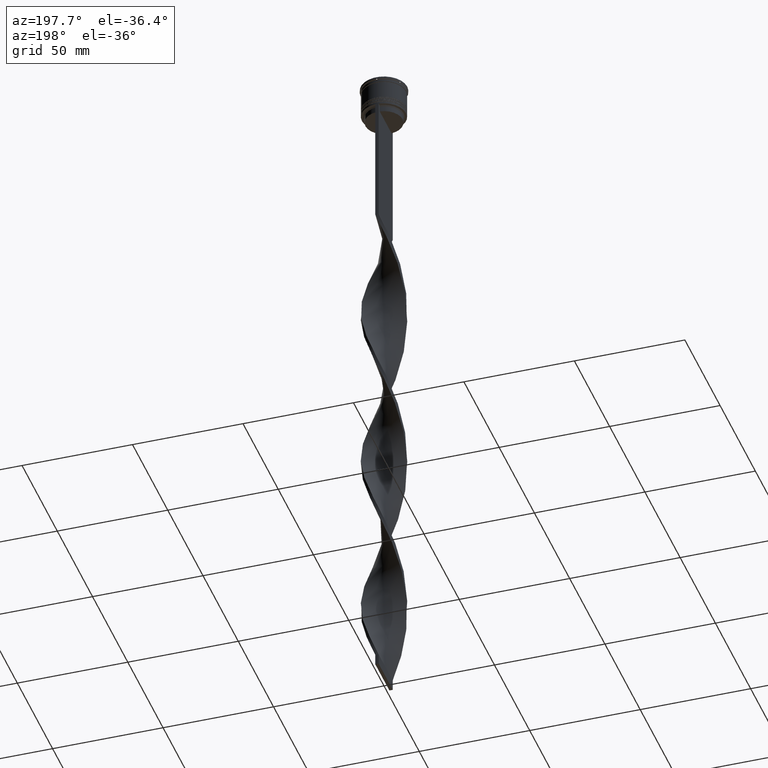
[diagram: clean part render]
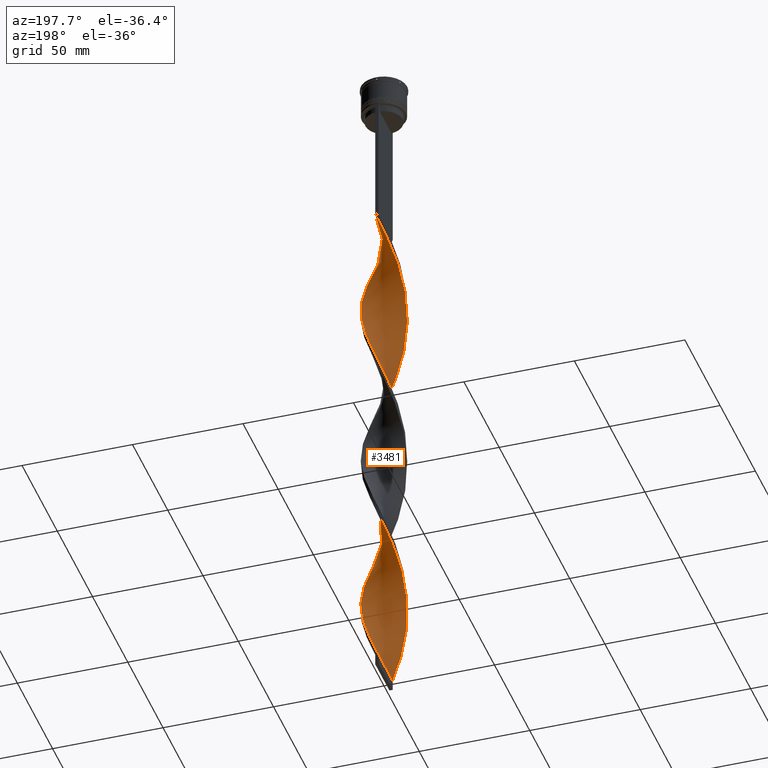
[diagram: same view with one face highlighted and labeled with its STEP entity id]
A machine part, auxiliary view. The second image highlights one B-rep face of the part: STEP entity #3481.
In plain terms, the highlighted face is a freeform B-spline surface patch.
Its self-contained STEP definition (entity closure, byte-faithful):
#19 = VECTOR ( 'NONE', #530, 1000.000000000000000 ) ;
#33 = CARTESIAN_POINT ( 'NONE',  ( -3.871650104254195757, -9.250558116688344157, -218.5333333333333314 ) ) ;
#41 = CARTESIAN_POINT ( 'NONE',  ( -3.871650104254190428, 9.250558116688338828, -242.1333333333333258 ) ) ;
#44 = CARTESIAN_POINT ( 'NONE',  ( -8.531008882968830420, -5.271089777143518340, -285.3999999999999773 ) ) ;
#57 = CARTESIAN_POINT ( 'NONE',  ( -0.03701706824618429537, 10.05902628011846112, -232.3000000000000114 ) ) ;
#68 = CARTESIAN_POINT ( 'NONE',  ( -8.979463439879777908, 4.533719918490541012, -102.5000000000000142 ) ) ;
#76 = CARTESIAN_POINT ( 'NONE',  ( -1.537017068246185891, -9.940973719881535331, -149.7000000000000455 ) ) ;
#81 = CARTESIAN_POINT ( 'NONE',  ( 3.871650104254194869, 9.250558116688344157, -297.2000000000000455 ) ) ;
#96 = CARTESIAN_POINT ( 'NONE',  ( 5.942494737169154106, 8.116165120681840150, -291.3000000000000682 ) ) ;
#103 = CARTESIAN_POINT ( 'NONE',  ( 5.882599862582947203, 8.159681294278261277, -216.5666666666666629 ) ) ;
#113 = CARTESIAN_POINT ( 'NONE',  ( -8.531008882968830420, -5.271089777143518340, -128.0666666666666629 ) ) ;
#124 = CARTESIAN_POINT ( 'NONE',  ( 0.7500000000000001110, 9.999999999999998224, -230.3333333333333428 ) ) ;
#143 = CARTESIAN_POINT ( 'NONE',  ( 9.742327908732750785, -2.376877556528111057, -104.4666666666666828 ) ) ;
#154 = CARTESIAN_POINT ( 'NONE',  ( 2.376877556528111501, 9.742327908732750785, -301.1333333333333258 ) ) ;
#164 = CARTESIAN_POINT ( 'NONE',  ( -0.7500000000000013323, -9.999999999999998224, -309.0000000000000000 ) ) ;
#165 = CARTESIAN_POINT ( 'NONE',  ( 8.531008882968833973, -5.271089777143523669, -96.60000000000000853 ) ) ;
#173 = CARTESIAN_POINT ( 'NONE',  ( 6.540737725975562356, -7.601397897755385991, -171.3333333333333428 ) ) ;
#183 = CARTESIAN_POINT ( 'NONE',  ( 3.143615391390495173, 9.555263588120860518, -141.8333333333333144 ) ) ;
#185 = CARTESIAN_POINT ( 'NONE',  ( 6.484615268705944402, -7.649331004530123934, -88.73333333333334849 ) ) ;
#191 = CARTESIAN_POINT ( 'NONE',  ( 8.116165120681836598, 5.942494737169151442, -208.7000000000000171 ) ) ;
#199 = CARTESIAN_POINT ( 'NONE',  ( -9.578141394460869762, 3.073204743451140697, -263.7666666666667652 ) ) ;
#200 = CARTESIAN_POINT ( 'NONE',  ( 8.945852645255826019, -4.599684817117896785, -98.56666666666669130 ) ) ;
#208 = CARTESIAN_POINT ( 'NONE',  ( 9.278802417170323835, -3.803462330970840632, -183.1333333333333258 ) ) ;
#224 = CARTESIAN_POINT ( 'NONE',  ( -7.601397897755385102, -6.540737725975563244, -289.3333333333333144 ) ) ;
#233 = CARTESIAN_POINT ( 'NONE',  ( 9.555263588120851637, 3.143615391390493397, -200.8333333333333428 ) ) ;
#242 = CARTESIAN_POINT ( 'NONE',  ( -10.00000000000000533, -0.7499999999999983347, -191.0000000000000000 ) ) ;
#248 = CARTESIAN_POINT ( 'NONE',  ( -10.05902628011846112, -0.03701706824618363617, -114.3000000000000398 ) ) ;
#252 = CARTESIAN_POINT ( 'NONE',  ( 6.484615268705942626, 7.649331004530116829, -214.5999999999999943 ) ) ;
#263 = CARTESIAN_POINT ( 'NONE',  ( -5.942494737169157659, -8.116165120681838374, -212.6333333333333826 ) ) ;
#268 = CARTESIAN_POINT ( 'NONE',  ( -9.250558116688338828, -3.871650104254190428, -124.1333333333333400 ) ) ;
#285 = CARTESIAN_POINT ( 'NONE',  ( 9.929392229344639276, -1.610139721665728274, -263.7666666666667652 ) ) ;
#308 = CARTESIAN_POINT ( 'NONE',  ( -8.159681294278266606, -5.882599862582948091, -204.7666666666666799 ) ) ;
#333 = CARTESIAN_POINT ( 'NONE',  ( -9.578141394460880420, -3.073204743451134924, -196.9000000000000057 ) ) ;
#353 = CARTESIAN_POINT ( 'NONE',  ( 5.942494737169147889, -8.116165120681840150, -169.3666666666667027 ) ) ;
#358 = CARTESIAN_POINT ( 'NONE',  ( -7.086630674828936272, -7.138980714781978598, -291.3000000000000682 ) ) ;
#361 = VERTEX_POINT ( 'NONE', #3092 ) ;
#372 = CARTESIAN_POINT ( 'NONE',  ( 4.599684817117890567, -8.945852645255820690, -165.4333333333333655 ) ) ;
#381 = CARTESIAN_POINT ( 'NONE',  ( 5.208159890536745884, -8.569572367079022257, -242.1333333333333258 ) ) ;
#391 = CARTESIAN_POINT ( 'NONE',  ( -8.159681294278259500, 5.882599862582949868, -255.9000000000000909 ) ) ;
#401 = CARTESIAN_POINT ( 'NONE',  ( -9.759557557171204323, 2.305110905848662739, -108.3999999999999915 ) ) ;
#409 = CARTESIAN_POINT ( 'NONE',  ( 9.742327908732745456, 2.376877556528106172, -198.8666666666666742 ) ) ;
#416 = CARTESIAN_POINT ( 'NONE',  ( -7.649331004530125711, -6.484615268705942626, -206.7333333333333201 ) ) ;
#439 = CARTESIAN_POINT ( 'NONE',  ( -7.086630674828937160, -7.138980714781979486, -133.9666666666666686 ) ) ;
#447 = CARTESIAN_POINT ( 'NONE',  ( 9.278802417170330941, 3.803462330970840632, -277.5333333333333030 ) ) ;
#457 = CARTESIAN_POINT ( 'NONE',  ( -9.929392229344635723, -1.610139721665725387, -275.5666666666666060 ) ) ;
#464 = CARTESIAN_POINT ( 'NONE',  ( 8.979463439879786790, 4.533719918490541900, -279.4999999999999432 ) ) ;
#472 = CARTESIAN_POINT ( 'NONE',  ( 7.138980714781985704, 7.086630674828939824, -130.0333333333333314 ) ) ;
#473 = CARTESIAN_POINT ( 'NONE',  ( 9.278802417170330941, 3.803462330970840632, -120.2000000000000028 ) ) ;
#475 = CARTESIAN_POINT ( 'NONE',  ( 3.143615391390495173, 9.555263588120860518, -299.1666666666666856 ) ) ;
#485 = CARTESIAN_POINT ( 'NONE',  ( -8.159681294278255947, 5.882599862582948980, -98.56666666666669130 ) ) ;
#497 = CARTESIAN_POINT ( 'NONE',  ( 4.599684817117896785, 8.945852645255826019, -137.9000000000000625 ) ) ;
#500 = CARTESIAN_POINT ( 'NONE',  ( 9.940973719881544213, 1.537017068246184337, -271.6333333333332689 ) ) ;
#504 = CARTESIAN_POINT ( 'NONE',  ( 8.979463439879776132, -4.533719918490545453, -181.1666666666666856 ) ) ;
#515 = CARTESIAN_POINT ( 'NONE',  ( -4.533719918490541012, -8.979463439879779685, -299.1666666666666856 ) ) ;
#523 = CARTESIAN_POINT ( 'NONE',  ( -6.540737725975564132, 7.601397897755385102, -250.0000000000000000 ) ) ;
#530 = DIRECTION ( 'NONE',  ( 0.000000000000000000, 1.000000000000000000, 0.000000000000000000 ) ) ;
#533 = CARTESIAN_POINT ( 'NONE',  ( 10.00000000000000533, 0.7499999999999994449, -112.3333333333333428 ) ) ;
#535 = CARTESIAN_POINT ( 'NONE',  ( 9.929392229344641052, -1.610139721665728274, -106.4333333333333513 ) ) ;
#543 = CARTESIAN_POINT ( 'NONE',  ( 0.8235783949559536410, -9.994209254731549308, -155.6000000000000227 ) ) ;
#558 = CARTESIAN_POINT ( 'NONE',  ( -9.929392229344641052, 1.610139721665725387, -185.0999999999999659 ) ) ;
#560 = CARTESIAN_POINT ( 'NONE',  ( 1.610139721665729162, 9.929392229344641052, -145.7666666666666515 ) ) ;
#564 = CARTESIAN_POINT ( 'NONE',  ( -8.569572367079015152, 5.208159890536744108, -100.5333333333333314 ) ) ;
#571 = CARTESIAN_POINT ( 'NONE',  ( 9.250558116688338828, 3.871650104254189539, -202.8000000000000114 ) ) ;
#581 = CARTESIAN_POINT ( 'NONE',  ( -4.599684817117894120, -8.945852645255826019, -216.5666666666666629 ) ) ;
#582 = CARTESIAN_POINT ( 'NONE',  ( -1.537017068246183671, 9.940973719881544213, -153.6333333333333826 ) ) ;
#587 = CARTESIAN_POINT ( 'NONE',  ( -7.649331004530118605, 6.484615268705940849, -96.60000000000000853 ) ) ;
#603 = CARTESIAN_POINT ( 'NONE',  ( -7.601397897755389543, 6.540737725975570349, -171.3333333333333428 ) ) ;
#606 = CARTESIAN_POINT ( 'NONE',  ( -9.940973719881535331, 1.537017068246185003, -110.3666666666666600 ) ) ;
#626 = CARTESIAN_POINT ( 'NONE',  ( -9.940973719881544213, -1.537017068246187446, -192.9666666666666970 ) ) ;
#663 = CARTESIAN_POINT ( 'NONE',  ( -9.929392229344635723, -1.610139721665724943, -275.5666666666666060 ) ) ;
#675 = CARTESIAN_POINT ( 'NONE',  ( 9.250558116688338828, 3.871650104254189539, -202.8000000000000114 ) ) ;
#678 = CARTESIAN_POINT ( 'NONE',  ( -1.537017068246183671, 9.940973719881544213, -153.6333333333333826 ) ) ;
#688 = CARTESIAN_POINT ( 'NONE',  ( -8.945852645255827795, 4.599684817117893232, -177.2333333333333485 ) ) ;
#689 = CARTESIAN_POINT ( 'NONE',  ( -0.7500000000000005551, -3.333333333333330373, -309.0000000000000000 ) ) ;
#698 = CARTESIAN_POINT ( 'NONE',  ( -7.601397897755385102, -6.540737725975563244, -132.0000000000000000 ) ) ;
#711 = CARTESIAN_POINT ( 'NONE',  ( -1.610139721665725832, -9.929392229344641052, -224.4333333333333655 ) ) ;
#716 = CARTESIAN_POINT ( 'NONE',  ( -7.649331004530118605, 6.484615268705940849, -253.9333333333333371 ) ) ;
#726 = CARTESIAN_POINT ( 'NONE',  ( -9.999999999999998224, 0.7500000000000008882, -112.3333333333333428 ) ) ;
#734 = CARTESIAN_POINT ( 'NONE',  ( 9.999999999999998224, -0.7500000000000019984, -191.0000000000000000 ) ) ;
#742 = CARTESIAN_POINT ( 'NONE',  ( -7.649331004530118605, 6.484615268705940849, -96.60000000000000853 ) ) ;
#753 = CARTESIAN_POINT ( 'NONE',  ( 7.086630674828940712, 7.138980714781974157, -212.6333333333333826 ) ) ;
#758 = CARTESIAN_POINT ( 'NONE',  ( -0.7499999999999988898, 10.00000000000000533, -151.6666666666666856 ) ) ;
#770 = CARTESIAN_POINT ( 'NONE',  ( 8.569572367079022257, 5.208159890536745884, -281.4666666666666401 ) ) ;
#778 = CARTESIAN_POINT ( 'NONE',  ( -9.742327908732745456, -2.376877556528107949, -277.5333333333333030 ) ) ;
#781 = CARTESIAN_POINT ( 'NONE',  ( 4.599684817117896785, 8.945852645255826019, -137.9000000000000625 ) ) ;
#791 = CARTESIAN_POINT ( 'NONE',  ( -9.759557557171209652, -2.305110905848660963, -194.9333333333333371 ) ) ;
#797 = CARTESIAN_POINT ( 'NONE',  ( -5.882599862582949868, -8.159681294278259500, -295.2333333333332916 ) ) ;
#817 = CARTESIAN_POINT ( 'NONE',  ( 5.942494737169154106, 8.116165120681840150, -133.9666666666666686 ) ) ;
#818 = CARTESIAN_POINT ( 'NONE',  ( 5.942494737169154106, 8.116165120681841927, -133.9666666666666686 ) ) ;
#827 = CARTESIAN_POINT ( 'NONE',  ( -0.8235783949559584149, -9.994209254731554637, -226.3999999999999773 ) ) ;
#830 = CARTESIAN_POINT ( 'NONE',  ( -2.376877556528107949, 9.742327908732745456, -238.1999999999999886 ) ) ;
#836 = VERTEX_POINT ( 'NONE', #2882 ) ;
#844 = CARTESIAN_POINT ( 'NONE',  ( 0.7500000000000001110, -10.00000000000000533, -73.00000000000001421 ) ) ;
#846 = CARTESIAN_POINT ( 'NONE',  ( 4.533719918490542788, -8.979463439879785014, -82.83333333333335702 ) ) ;
#854 = CARTESIAN_POINT ( 'NONE',  ( -5.942494737169148777, 8.116165120681838374, -248.0333333333333599 ) ) ;
#864 = CARTESIAN_POINT ( 'NONE',  ( 10.05902628011846822, -0.03701706824618536396, -110.3666666666666600 ) ) ;
#865 = CARTESIAN_POINT ( 'NONE',  ( 0.7500000000000001110, -10.00000000000000533, -73.00000000000001421 ) ) ;
#874 = CARTESIAN_POINT ( 'NONE',  ( 7.601397897755385991, 6.540737725975562356, -210.6666666666666572 ) ) ;
#887 = CARTESIAN_POINT ( 'NONE',  ( -3.803462330970839744, 9.278802417170330941, -159.5333333333333314 ) ) ;
#901 = CARTESIAN_POINT ( 'NONE',  ( 0.03701706824618287983, -10.05902628011846112, -153.6333333333333826 ) ) ;
#919 = CARTESIAN_POINT ( 'NONE',  ( -2.305110905848661851, 9.759557557171209652, -155.6000000000000227 ) ) ;
#927 = CARTESIAN_POINT ( 'NONE',  ( 8.569572367079015152, -5.208159890536744996, -179.1999999999999886 ) ) ;
#933 = CARTESIAN_POINT ( 'NONE',  ( 8.979463439879785014, 4.533719918490541900, -279.4999999999999432 ) ) ;
#937 = CARTESIAN_POINT ( 'NONE',  ( 10.05902628011846822, -0.03701706824618536396, -267.6999999999999318 ) ) ;
#945 = CARTESIAN_POINT ( 'NONE',  ( -7.601397897755385102, -6.540737725975563244, -289.3333333333333144 ) ) ;
#950 = CARTESIAN_POINT ( 'NONE',  ( -0.7500000000000014433, -9.999999999999998224, -309.0000000000000000 ) ) ;
#956 = CARTESIAN_POINT ( 'NONE',  ( -9.994209254731554637, 0.8235783949559579709, -187.0666666666666629 ) ) ;
#959 = CARTESIAN_POINT ( 'NONE',  ( -3.143615391390491620, 9.555263588120853413, -82.83333333333335702 ) ) ;
#979 = CARTESIAN_POINT ( 'NONE',  ( -9.555263588120856966, 3.143615391390499170, -181.1666666666667140 ) ) ;
#987 = CARTESIAN_POINT ( 'NONE',  ( 0.03701706824618613417, 10.05902628011846822, -149.7000000000000171 ) ) ;
#994 = CARTESIAN_POINT ( 'NONE',  ( -5.882599862582949868, 8.159681294278264829, -165.4333333333333371 ) ) ;
#1008 = CARTESIAN_POINT ( 'NONE',  ( -1.610139721665726054, 9.929392229344633947, -78.90000000000003411 ) ) ;
#1024 = CARTESIAN_POINT ( 'NONE',  ( -6.540737725975564132, 7.601397897755385102, -250.0000000000000000 ) ) ;
#1028 = CARTESIAN_POINT ( 'NONE',  ( -5.208159890536744996, -8.569572367079015152, -297.2000000000000455 ) ) ;
#1042 = CARTESIAN_POINT ( 'NONE',  ( 8.116165120681836598, 5.942494737169151442, -208.7000000000000171 ) ) ;
#1054 = CARTESIAN_POINT ( 'NONE',  ( -9.578141394460869762, 3.073204743451140697, -106.4333333333333513 ) ) ;
#1061 = CARTESIAN_POINT ( 'NONE',  ( 6.540737725975563244, -7.601397897755385991, -171.3333333333333428 ) ) ;
#1069 = CARTESIAN_POINT ( 'NONE',  ( -8.945852645255822466, -4.599684817117892344, -126.1000000000000227 ) ) ;
#1078 = CARTESIAN_POINT ( 'NONE',  ( 9.278802417170323835, -3.803462330970840188, -183.1333333333333258 ) ) ;
#1087 = CARTESIAN_POINT ( 'NONE',  ( -0.03701706824618418434, 10.05902628011846112, -74.96666666666668277 ) ) ;
#1090 = CARTESIAN_POINT ( 'NONE',  ( 9.742327908732750785, -2.376877556528111057, -261.7999999999999545 ) ) ;
#1095 = EDGE_CURVE ( 'NONE', #1996, #3150, #1281, .T. ) ;
#1098 = CARTESIAN_POINT ( 'NONE',  ( 9.278802417170330941, 3.803462330970840632, -120.2000000000000028 ) ) ;
#1102 = CARTESIAN_POINT ( 'NONE',  ( 8.159681294278264829, 5.882599862582951644, -126.1000000000000227 ) ) ;
#1120 = ORIENTED_EDGE ( 'NONE', *, *, #1290, .T. ) ;
#1126 = CARTESIAN_POINT ( 'NONE',  ( -9.994209254731549308, -0.8235783949559544181, -273.5999999999999659 ) ) ;
#1144 = CARTESIAN_POINT ( 'NONE',  ( 6.540737725975569461, 7.601397897755389543, -132.0000000000000000 ) ) ;
#1145 = CARTESIAN_POINT ( 'NONE',  ( 5.882599862582951644, -8.159681294278264829, -86.76666666666666572 ) ) ;
#1156 = CARTESIAN_POINT ( 'NONE',  ( 4.599684817117890567, -8.945852645255822466, -165.4333333333333371 ) ) ;
#1165 = CARTESIAN_POINT ( 'NONE',  ( -9.759557557171204323, 2.305110905848662739, -265.7333333333333485 ) ) ;
#1166 = CARTESIAN_POINT ( 'NONE',  ( 1.537017068246185003, -9.940973719881544213, -74.96666666666668277 ) ) ;
#1180 = CARTESIAN_POINT ( 'NONE',  ( 4.533719918490546341, 8.979463439879776132, -220.5000000000000284 ) ) ;
#1193 = CARTESIAN_POINT ( 'NONE',  ( -1.537017068246185891, -9.940973719881535331, -307.0333333333333030 ) ) ;
#1194 = CARTESIAN_POINT ( 'NONE',  ( 9.994209254731556413, -0.8235783949559567496, -108.3999999999999915 ) ) ;
#1196 = CARTESIAN_POINT ( 'NONE',  ( 5.208159890536745884, -8.569572367079022257, -242.1333333333333258 ) ) ;
#1201 = CARTESIAN_POINT ( 'NONE',  ( 9.994209254731549308, 0.8235783949559529749, -194.9333333333333371 ) ) ;
#1208 = CARTESIAN_POINT ( 'NONE',  ( 9.278802417170330941, 3.803462330970840632, -277.5333333333333030 ) ) ;
#1216 = CARTESIAN_POINT ( 'NONE',  ( 7.086630674828940712, -7.138980714781985704, -248.0333333333333314 ) ) ;
#1225 = CARTESIAN_POINT ( 'NONE',  ( -5.208159890536744996, -8.569572367079015152, -139.8666666666666742 ) ) ;
#1235 = CARTESIAN_POINT ( 'NONE',  ( -3.143615391390500058, -9.555263588120856966, -220.5000000000000284 ) ) ;
#1244 = CARTESIAN_POINT ( 'NONE',  ( 7.086630674828939824, 7.138980714781974157, -212.6333333333333826 ) ) ;
#1247 = CARTESIAN_POINT ( 'NONE',  ( -4.533719918490541900, 8.979463439879785014, -161.5000000000000000 ) ) ;
#1248 = CARTESIAN_POINT ( 'NONE',  ( 8.569572367079022257, 5.208159890536745884, -281.4666666666666401 ) ) ;
#1255 = CARTESIAN_POINT ( 'NONE',  ( -9.994209254731554637, 0.8235783949559579709, -187.0666666666666629 ) ) ;
#1264 = CARTESIAN_POINT ( 'NONE',  ( 9.742327908732750785, -2.376877556528111057, -261.7999999999999545 ) ) ;
#1281 = LINE ( 'NONE', #4237, #19 ) ;
#1283 = CARTESIAN_POINT ( 'NONE',  ( 0.8235783949559573047, 9.994209254731554637, -147.7333333333333201 ) ) ;
#1290 = EDGE_CURVE ( 'NONE', #1996, #361, #3227, .T. ) ;
#1292 = CARTESIAN_POINT ( 'NONE',  ( -5.882599862582948980, -8.159681294278255947, -295.2333333333333485 ) ) ;
#1302 = CARTESIAN_POINT ( 'NONE',  ( -9.250558116688344157, 3.871650104254195757, -179.1999999999999886 ) ) ;
#1305 = CARTESIAN_POINT ( 'NONE',  ( -9.278802417170323835, 3.803462330970839300, -104.4666666666666828 ) ) ;
#1328 = CARTESIAN_POINT ( 'NONE',  ( 8.116165120681841927, -5.942494737169153218, -251.9666666666666686 ) ) ;
#1339 = CARTESIAN_POINT ( 'NONE',  ( -8.945852645255822466, -4.599684817117892344, -283.4333333333333940 ) ) ;
#1353 = CARTESIAN_POINT ( 'NONE',  ( 6.484615268705942626, 7.649331004530116829, -214.5999999999999943 ) ) ;
#1371 = CARTESIAN_POINT ( 'NONE',  ( 3.803462330970841521, 9.278802417170323835, -222.4666666666666686 ) ) ;
#1382 = CARTESIAN_POINT ( 'NONE',  ( 3.143615391390495173, 9.555263588120860518, -299.1666666666666856 ) ) ;
#1395 = CARTESIAN_POINT ( 'NONE',  ( 5.271089777143518340, -8.531008882968828644, -167.4000000000000057 ) ) ;
#1412 = CARTESIAN_POINT ( 'NONE',  ( -9.742327908732745456, -2.376877556528107505, -120.2000000000000028 ) ) ;
#1420 = CARTESIAN_POINT ( 'NONE',  ( 5.208159890536744996, 8.569572367079015152, -218.5333333333333314 ) ) ;
#1431 = CARTESIAN_POINT ( 'NONE',  ( -8.116165120681838374, -5.942494737169147889, -130.0333333333333314 ) ) ;
#1440 = CARTESIAN_POINT ( 'NONE',  ( 8.159681294278261277, -5.882599862582945427, -177.2333333333333485 ) ) ;
#1450 = CARTESIAN_POINT ( 'NONE',  ( 4.599684817117896785, 8.945852645255826019, -295.2333333333332916 ) ) ;
#1457 = CARTESIAN_POINT ( 'NONE',  ( 9.250558116688344157, -3.871650104254194869, -257.8666666666666742 ) ) ;
#1461 = CARTESIAN_POINT ( 'NONE',  ( 9.250558116688344157, -3.871650104254194869, -100.5333333333333314 ) ) ;
#1466 = CARTESIAN_POINT ( 'NONE',  ( 0.7500000000000001110, -10.00000000000000533, -230.3333333333333428 ) ) ;
#1475 = CARTESIAN_POINT ( 'NONE',  ( -2.376877556528107949, 9.742327908732745456, -80.86666666666667425 ) ) ;
#1480 = CARTESIAN_POINT ( 'NONE',  ( 9.555263588120860518, -3.143615391390494285, -259.8333333333334281 ) ) ;
#1484 = CARTESIAN_POINT ( 'NONE',  ( -9.940973719881535331, 1.537017068246185003, -267.6999999999999318 ) ) ;
#1486 = CARTESIAN_POINT ( 'NONE',  ( 10.05902628011846822, -0.03701706824618537089, -110.3666666666666742 ) ) ;
#1491 = CARTESIAN_POINT ( 'NONE',  ( 5.271089777143518340, -8.531008882968830420, -167.4000000000000057 ) ) ;
#1499 = CARTESIAN_POINT ( 'NONE',  ( -9.278802417170323835, 3.803462330970839300, -261.7999999999999545 ) ) ;
#1507 = CARTESIAN_POINT ( 'NONE',  ( 9.578141394460871538, -3.073204743451137588, -185.0999999999999943 ) ) ;
#1516 = CARTESIAN_POINT ( 'NONE',  ( 8.531008882968833973, -5.271089777143523669, -96.60000000000000853 ) ) ;
#1530 = CARTESIAN_POINT ( 'NONE',  ( -7.138980714781979486, 7.086630674828935383, -251.9666666666666686 ) ) ;
#1542 = CARTESIAN_POINT ( 'NONE',  ( 9.578141394460878644, 3.073204743451140697, -118.2333333333333343 ) ) ;
#1550 = CARTESIAN_POINT ( 'NONE',  ( 3.073204743451137588, 9.578141394460871538, -224.4333333333333371 ) ) ;
#1561 = ORIENTED_EDGE ( 'NONE', *, *, #3531, .F. ) ;
#1563 = CARTESIAN_POINT ( 'NONE',  ( -7.649331004530125711, -6.484615268705942626, -206.7333333333333201 ) ) ;
#1564 = CARTESIAN_POINT ( 'NONE',  ( 0.8235783949559573047, 9.994209254731554637, -147.7333333333333201 ) ) ;
#1568 = CARTESIAN_POINT ( 'NONE',  ( -6.540737725975564132, 7.601397897755385102, -92.66666666666667140 ) ) ;
#1574 = CARTESIAN_POINT ( 'NONE',  ( 0.7500000000000002220, 9.999999999999998224, -230.3333333333333428 ) ) ;
#1579 = CARTESIAN_POINT ( 'NONE',  ( -9.742327908732750785, 2.376877556528111946, -183.1333333333333258 ) ) ;
#1583 = CARTESIAN_POINT ( 'NONE',  ( -0.8235783949559584149, -9.994209254731554637, -226.3999999999999773 ) ) ;
#1588 = CARTESIAN_POINT ( 'NONE',  ( -5.271089777143520116, 8.531008882968830420, -88.73333333333334849 ) ) ;
#1593 = CARTESIAN_POINT ( 'NONE',  ( -9.759557557171204323, 2.305110905848662739, -265.7333333333333485 ) ) ;
#1598 =( BOUNDED_SURFACE ( )  B_SPLINE_SURFACE ( 1, 2, ( 
 ( #3953, #1963, #3605, #1008, #2899, #959, #3307, #2658, #1588, #1635, #1568, #2968, #587, #4292, #564, #2927, #1305, #1884, #2634, #606, #3235, #248, #2561, #1904, #3916, #3255, #268, #4251, #2590, #1929, #698, #439, #2738, #2024, #3359, #1709, #3049, #3425, #2387, #76, #3730, #2692, #2759, #1675, #2042, #2060, #4075, #372, #1395, #353, #1061, #3688, #3376, #1440, #1691, #4057, #1078, #2719, #4029, #2402, #734, #3010, #3031, #3398, #409, #3094, #675, #3750, #3072, #1042, #1735, #753, #1353, #103, #1420, #4093, #1371, #2367, #2080, #1756, #124, #57, #2326, #3670, #1999, #3334, #41, #3712, #2674, #4012, #1024, #2341, #716, #391, #3142, #4147, #1499, #199, #1165, #1484, #2428, #3530, #1126, #457, #778, #2469, #3779, #2488, #2100, #1790, #224, #4115, #3818, #797, #1856, #515, #1773, #3843, #4174, #1193, #164 ),
 ( #844, #3488, #2805, #2169, #1812, #1833, #3510, #2449, #2512, #2190, #3180, #3116, #1516, #2843, #1461, #3860, #143, #2869, #2786, #864, #533, #3203, #3799, #1542, #1098, #4130, #3446, #2123, #3463, #472, #1144, #817, #2145, #497, #3162, #183, #2824, #3557, #1283, #2965, #4287, #582, #919, #1898, #887, #4268, #2945, #2257, #3249, #2607, #603, #3622, #3949, #2894, #1302, #979, #1957, #558, #956, #2276, #242, #626, #1879, #1702, #3231, #3301, #2630, #308, #1563, #1630, #3970, #263, #2307, #4214, #2552, #1235, #3703, #711, #1583, #3906, #2034, #3367, #2238, #3579, #3602, #1923, #381, #4194, #3271, #1216, #2919, #2532, #4241, #3931, #3883, #2211, #1264, #285, #2585, #937, #1610, #2750, #2135, #2394, #447, #464, #770, #3412, #1780, #2093, #3722, #96, #3767, #1450, #3810, #1382, #154, #3791, #1747, #4105, #3126 ) ),
 .UNSPECIFIED., .F., .F., .T. ) 
 B_SPLINE_SURFACE_WITH_KNOTS ( ( 2, 2 ),
 ( 3, 2, 2, 2, 2, 2, 2, 2, 2, 2, 2, 2, 2, 2, 2, 2, 2, 2, 2, 2, 2, 2, 2, 2, 2, 2, 2, 2, 2, 2, 2, 2, 2, 2, 2, 2, 2, 2, 2, 2, 2, 2, 2, 2, 2, 2, 2, 2, 2, 2, 2, 2, 2, 2, 2, 2, 2, 2, 2, 2, 3 ),
 ( 0.000000000000000000, 1.000000000000000000 ),
 ( 0.000000000000000000, 0.01250000000000000069, 0.02500000000000000139, 0.03749999999999999861, 0.05000000000000000278, 0.06250000000000000000, 0.07499999999999999722, 0.08749999999999999445, 0.1000000000000000056, 0.1125000000000000028, 0.1250000000000000000, 0.1375000000000000111, 0.1499999999999999944, 0.1625000000000000056, 0.1749999999999999889, 0.1875000000000000000, 0.2000000000000000111, 0.2124999999999999944, 0.2250000000000000056, 0.2374999999999999889, 0.2500000000000000000, 0.2625000000000000111, 0.2750000000000000222, 0.2874999999999999778, 0.2999999999999999889, 0.3125000000000000000, 0.3250000000000000111, 0.3375000000000000222, 0.3499999999999999778, 0.3624999999999999889, 0.3750000000000000000, 0.3875000000000000111, 0.4000000000000000222, 0.4124999999999999778, 0.4249999999999999889, 0.4375000000000000000, 0.4500000000000000111, 0.4625000000000000222, 0.4749999999999999778, 0.4874999999999999889, 0.5000000000000000000, 0.5124999999999999556, 0.5250000000000000222, 0.5374999999999999778, 0.5500000000000000444, 0.5625000000000000000, 0.5749999999999999556, 0.5875000000000000222, 0.5999999999999999778, 0.6125000000000000444, 0.6250000000000000000, 0.6374999999999999556, 0.6500000000000000222, 0.6624999999999999778, 0.6750000000000000444, 0.6875000000000000000, 0.6999999999999999556, 0.7125000000000000222, 0.7249999999999999778, 0.7375000000000000444, 0.7500000000000000000 ),
 .UNSPECIFIED. ) 
 GEOMETRIC_REPRESENTATION_ITEM ( )  RATIONAL_B_SPLINE_SURFACE ( (
 ( 1.000000000000000000, 0.9969173337331279638, 1.000000000000000000, 0.9969173337331279638, 1.000000000000000000, 0.9969173337331279638, 1.000000000000000000, 0.9969173337331279638, 1.000000000000000000, 0.9969173337331279638, 1.000000000000000000, 0.9969173337331279638, 1.000000000000000000, 0.9969173337331279638, 1.000000000000000000, 0.9969173337331279638, 1.000000000000000000, 0.9969173337331279638, 1.000000000000000000, 0.9969173337331279638, 1.000000000000000000, 0.9969173337331279638, 1.000000000000000000, 0.9969173337331279638, 1.000000000000000000, 0.9969173337331279638, 1.000000000000000000, 0.9969173337331279638, 1.000000000000000000, 0.9969173337331279638, 1.000000000000000000, 0.9969173337331279638, 1.000000000000000000, 0.9969173337331279638, 1.000000000000000000, 0.9969173337331279638, 1.000000000000000000, 0.9969173337331279638, 1.000000000000000000, 0.9969173337331279638, 1.000000000000000000, 0.9969173337331279638, 1.000000000000000000, 0.9969173337331279638, 1.000000000000000000, 0.9969173337331279638, 1.000000000000000000, 0.9969173337331279638, 1.000000000000000000, 0.9969173337331279638, 1.000000000000000000, 0.9969173337331279638, 1.000000000000000000, 0.9969173337331279638, 1.000000000000000000, 0.9969173337331279638, 1.000000000000000000, 0.9969173337331279638, 1.000000000000000000, 0.9969173337331279638, 1.000000000000000000, 0.9969173337331279638, 1.000000000000000000, 0.9969173337331279638, 1.000000000000000000, 0.9969173337331279638, 1.000000000000000000, 0.9969173337331279638, 1.000000000000000000, 0.9969173337331279638, 1.000000000000000000, 0.9969173337331279638, 1.000000000000000000, 0.9969173337331279638, 1.000000000000000000, 0.9969173337331279638, 1.000000000000000000, 0.9969173337331279638, 1.000000000000000000, 0.9969173337331279638, 1.000000000000000000, 0.9969173337331279638, 1.000000000000000000, 0.9969173337331279638, 1.000000000000000000, 0.9969173337331279638, 1.000000000000000000, 0.9969173337331279638, 1.000000000000000000, 0.9969173337331279638, 1.000000000000000000, 0.9969173337331279638, 1.000000000000000000, 0.9969173337331279638, 1.000000000000000000, 0.9969173337331279638, 1.000000000000000000, 0.9969173337331279638, 1.000000000000000000, 0.9969173337331279638, 1.000000000000000000, 0.9969173337331279638, 1.000000000000000000, 0.9969173337331279638, 1.000000000000000000, 0.9969173337331279638, 1.000000000000000000, 0.9969173337331279638, 1.000000000000000000, 0.9969173337331279638, 1.000000000000000000, 0.9969173337331279638, 1.000000000000000000, 0.9969173337331279638, 1.000000000000000000, 0.9969173337331279638, 1.000000000000000000, 0.9969173337331279638, 1.000000000000000000, 0.9969173337331279638, 1.000000000000000000),
 ( 1.000000000000000000, 0.9969173337331279638, 1.000000000000000000, 0.9969173337331279638, 1.000000000000000000, 0.9969173337331279638, 1.000000000000000000, 0.9969173337331279638, 1.000000000000000000, 0.9969173337331279638, 1.000000000000000000, 0.9969173337331279638, 1.000000000000000000, 0.9969173337331279638, 1.000000000000000000, 0.9969173337331279638, 1.000000000000000000, 0.9969173337331279638, 1.000000000000000000, 0.9969173337331279638, 1.000000000000000000, 0.9969173337331279638, 1.000000000000000000, 0.9969173337331279638, 1.000000000000000000, 0.9969173337331279638, 1.000000000000000000, 0.9969173337331279638, 1.000000000000000000, 0.9969173337331279638, 1.000000000000000000, 0.9969173337331279638, 1.000000000000000000, 0.9969173337331279638, 1.000000000000000000, 0.9969173337331279638, 1.000000000000000000, 0.9969173337331279638, 1.000000000000000000, 0.9969173337331279638, 1.000000000000000000, 0.9969173337331279638, 1.000000000000000000, 0.9969173337331279638, 1.000000000000000000, 0.9969173337331279638, 1.000000000000000000, 0.9969173337331279638, 1.000000000000000000, 0.9969173337331279638, 1.000000000000000000, 0.9969173337331279638, 1.000000000000000000, 0.9969173337331279638, 1.000000000000000000, 0.9969173337331279638, 1.000000000000000000, 0.9969173337331279638, 1.000000000000000000, 0.9969173337331279638, 1.000000000000000000, 0.9969173337331279638, 1.000000000000000000, 0.9969173337331279638, 1.000000000000000000, 0.9969173337331279638, 1.000000000000000000, 0.9969173337331279638, 1.000000000000000000, 0.9969173337331279638, 1.000000000000000000, 0.9969173337331279638, 1.000000000000000000, 0.9969173337331279638, 1.000000000000000000, 0.9969173337331279638, 1.000000000000000000, 0.9969173337331279638, 1.000000000000000000, 0.9969173337331279638, 1.000000000000000000, 0.9969173337331279638, 1.000000000000000000, 0.9969173337331279638, 1.000000000000000000, 0.9969173337331279638, 1.000000000000000000, 0.9969173337331279638, 1.000000000000000000, 0.9969173337331279638, 1.000000000000000000, 0.9969173337331279638, 1.000000000000000000, 0.9969173337331279638, 1.000000000000000000, 0.9969173337331279638, 1.000000000000000000, 0.9969173337331279638, 1.000000000000000000, 0.9969173337331279638, 1.000000000000000000, 0.9969173337331279638, 1.000000000000000000, 0.9969173337331279638, 1.000000000000000000, 0.9969173337331279638, 1.000000000000000000, 0.9969173337331279638, 1.000000000000000000, 0.9969173337331279638, 1.000000000000000000, 0.9969173337331279638, 1.000000000000000000, 0.9969173337331279638, 1.000000000000000000, 0.9969173337331279638, 1.000000000000000000, 0.9969173337331279638, 1.000000000000000000, 0.9969173337331279638, 1.000000000000000000) ) ) 
 REPRESENTATION_ITEM ( '' )  SURFACE ( )  );
#1610 = CARTESIAN_POINT ( 'NONE',  ( 10.00000000000000533, 0.7499999999999994449, -269.6666666666666856 ) ) ;
#1619 = CARTESIAN_POINT ( 'NONE',  ( -9.555263588120853413, -3.143615391390491176, -279.4999999999999432 ) ) ;
#1630 = CARTESIAN_POINT ( 'NONE',  ( -7.138980714781983927, -7.086630674828942489, -208.7000000000000171 ) ) ;
#1635 = CARTESIAN_POINT ( 'NONE',  ( -5.942494737169148777, 8.116165120681838374, -90.70000000000001705 ) ) ;
#1656 = CARTESIAN_POINT ( 'NONE',  ( -8.116165120681838374, -5.942494737169147889, -287.3666666666667311 ) ) ;
#1675 = CARTESIAN_POINT ( 'NONE',  ( 1.610139721665724943, -9.929392229344635723, -157.5666666666666629 ) ) ;
#1680 = CARTESIAN_POINT ( 'NONE',  ( -4.533719918490541012, -8.979463439879777908, -299.1666666666666856 ) ) ;
#1691 = CARTESIAN_POINT ( 'NONE',  ( 8.569572367079015152, -5.208159890536744996, -179.1999999999999886 ) ) ;
#1693 = CARTESIAN_POINT ( 'NONE',  ( -3.073204743451139809, 9.578141394460878644, -157.5666666666666913 ) ) ;
#1702 = CARTESIAN_POINT ( 'NONE',  ( -9.578141394460880420, -3.073204743451134924, -196.9000000000000057 ) ) ;
#1709 = CARTESIAN_POINT ( 'NONE',  ( -4.533719918490541012, -8.979463439879779685, -141.8333333333333144 ) ) ;
#1720 = CARTESIAN_POINT ( 'NONE',  ( -9.940973719881544213, -1.537017068246187668, -192.9666666666666970 ) ) ;
#1721 = CARTESIAN_POINT ( 'NONE',  ( -9.929392229344635723, -1.610139721665724943, -118.2333333333333485 ) ) ;
#1735 = CARTESIAN_POINT ( 'NONE',  ( 7.601397897755385991, 6.540737725975562356, -210.6666666666666572 ) ) ;
#1740 = CARTESIAN_POINT ( 'NONE',  ( 0.7500000000000002220, 9.999999999999998224, -73.00000000000001421 ) ) ;
#1747 = CARTESIAN_POINT ( 'NONE',  ( 0.8235783949559573047, 9.994209254731554637, -305.0666666666666629 ) ) ;
#1755 = CARTESIAN_POINT ( 'NONE',  ( 0.03701706824618613417, 10.05902628011846822, -307.0333333333333030 ) ) ;
#1756 = CARTESIAN_POINT ( 'NONE',  ( 1.537017068246191220, 9.940973719881533555, -228.3666666666666458 ) ) ;
#1758 = CARTESIAN_POINT ( 'NONE',  ( 4.599684817117896785, 8.945852645255826019, -295.2333333333333485 ) ) ;
#1770 = CARTESIAN_POINT ( 'NONE',  ( 6.484615268705944402, -7.649331004530123934, -246.0666666666666629 ) ) ;
#1773 = CARTESIAN_POINT ( 'NONE',  ( -3.803462330970839744, -9.278802417170323835, -301.1333333333333258 ) ) ;
#1780 = CARTESIAN_POINT ( 'NONE',  ( 7.649331004530123934, 6.484615268705943514, -285.3999999999999773 ) ) ;
#1789 = CARTESIAN_POINT ( 'NONE',  ( 0.8235783949559573047, 9.994209254731554637, -305.0666666666666629 ) ) ;
#1790 = CARTESIAN_POINT ( 'NONE',  ( -8.116165120681838374, -5.942494737169147889, -287.3666666666667311 ) ) ;
#1803 = CARTESIAN_POINT ( 'NONE',  ( -3.143615391390492064, 9.555263588120853413, -240.1666666666666856 ) ) ;
#1811 = CARTESIAN_POINT ( 'NONE',  ( -0.7499999999999988898, 10.00000000000000533, -309.0000000000000000 ) ) ;
#1812 = CARTESIAN_POINT ( 'NONE',  ( 3.803462330970840632, -9.278802417170329164, -80.86666666666667425 ) ) ;
#1822 = CARTESIAN_POINT ( 'NONE',  ( -6.484615268705941737, -7.649331004530116829, -135.9333333333333371 ) ) ;
#1833 = CARTESIAN_POINT ( 'NONE',  ( 4.533719918490542788, -8.979463439879786790, -82.83333333333335702 ) ) ;
#1834 = CARTESIAN_POINT ( 'NONE',  ( 5.208159890536745884, -8.569572367079022257, -84.80000000000001137 ) ) ;
#1844 = CARTESIAN_POINT ( 'NONE',  ( 8.945852645255824243, 4.599684817117886126, -204.7666666666666799 ) ) ;
#1851 = CARTESIAN_POINT ( 'NONE',  ( 5.942494737169154106, 8.116165120681841927, -291.3000000000000682 ) ) ;
#1856 = CARTESIAN_POINT ( 'NONE',  ( -5.208159890536744996, -8.569572367079015152, -297.2000000000000455 ) ) ;
#1870 = CARTESIAN_POINT ( 'NONE',  ( 7.138980714781975934, -7.086630674828939824, -173.3000000000000114 ) ) ;
#1879 = CARTESIAN_POINT ( 'NONE',  ( -9.759557557171209652, -2.305110905848660963, -194.9333333333333371 ) ) ;
#1884 = CARTESIAN_POINT ( 'NONE',  ( -9.578141394460869762, 3.073204743451140697, -106.4333333333333513 ) ) ;
#1889 = CARTESIAN_POINT ( 'NONE',  ( -7.086630674828936272, -7.138980714781978598, -133.9666666666666686 ) ) ;
#1898 = CARTESIAN_POINT ( 'NONE',  ( -3.073204743451140253, 9.578141394460878644, -157.5666666666666629 ) ) ;
#1899 = CARTESIAN_POINT ( 'NONE',  ( 9.929392229344641052, -1.610139721665728274, -263.7666666666667084 ) ) ;
#1904 = CARTESIAN_POINT ( 'NONE',  ( -9.929392229344635723, -1.610139721665725387, -118.2333333333333343 ) ) ;
#1913 = CARTESIAN_POINT ( 'NONE',  ( -3.143615391390500502, -9.555263588120856966, -220.5000000000000284 ) ) ;
#1915 = CARTESIAN_POINT ( 'NONE',  ( -10.00000000000000533, -0.7499999999999983347, -191.0000000000000000 ) ) ;
#1923 = CARTESIAN_POINT ( 'NONE',  ( 4.533719918490542788, -8.979463439879786790, -240.1666666666667140 ) ) ;
#1929 = CARTESIAN_POINT ( 'NONE',  ( -8.116165120681838374, -5.942494737169147889, -130.0333333333333314 ) ) ;
#1936 = CARTESIAN_POINT ( 'NONE',  ( -1.537017068246185891, -9.940973719881535331, -307.0333333333333030 ) ) ;
#1938 = CARTESIAN_POINT ( 'NONE',  ( -8.569572367079024033, -5.208159890536744996, -202.8000000000000114 ) ) ;
#1940 = CARTESIAN_POINT ( 'NONE',  ( -5.208159890536744996, 8.569572367079022257, -163.4666666666666401 ) ) ;
#1946 = CARTESIAN_POINT ( 'NONE',  ( -1.610139721665725610, -9.929392229344642828, -224.4333333333333371 ) ) ;
#1957 = CARTESIAN_POINT ( 'NONE',  ( -9.742327908732750785, 2.376877556528111946, -183.1333333333333258 ) ) ;
#1959 = CARTESIAN_POINT ( 'NONE',  ( 9.578141394460878644, 3.073204743451140253, -275.5666666666666060 ) ) ;
#1963 = CARTESIAN_POINT ( 'NONE',  ( -0.03701706824618429537, 10.05902628011846112, -74.96666666666668277 ) ) ;
#1978 = CARTESIAN_POINT ( 'NONE',  ( -5.271089777143526334, -8.531008882968833973, -214.5999999999999943 ) ) ;
#1996 = VERTEX_POINT ( 'NONE', #2756 ) ;
#1999 = CARTESIAN_POINT ( 'NONE',  ( -2.376877556528108393, 9.742327908732745456, -238.1999999999999886 ) ) ;
#2011 = CARTESIAN_POINT ( 'NONE',  ( -9.250558116688344157, 3.871650104254195757, -179.1999999999999886 ) ) ;
#2013 = CARTESIAN_POINT ( 'NONE',  ( -0.7499999999999997780, 3.333333333333337478, -309.0000000000000000 ) ) ;
#2024 = CARTESIAN_POINT ( 'NONE',  ( -5.882599862582949868, -8.159681294278259500, -137.9000000000000625 ) ) ;
#2034 = CARTESIAN_POINT ( 'NONE',  ( 0.7500000000000001110, -10.00000000000000533, -230.3333333333333428 ) ) ;
#2042 = CARTESIAN_POINT ( 'NONE',  ( 2.376877556528107061, -9.742327908732745456, -159.5333333333333314 ) ) ;
#2045 = CARTESIAN_POINT ( 'NONE',  ( -8.159681294278266606, -5.882599862582947203, -204.7666666666666799 ) ) ;
#2051 = CARTESIAN_POINT ( 'NONE',  ( -9.994209254731549308, -0.8235783949559543071, -116.2666666666666657 ) ) ;
#2060 = CARTESIAN_POINT ( 'NONE',  ( 3.143615391390490732, -9.555263588120853413, -161.5000000000000000 ) ) ;
#2069 = CARTESIAN_POINT ( 'NONE',  ( -9.278802417170323835, 3.803462330970839744, -104.4666666666666828 ) ) ;
#2080 = CARTESIAN_POINT ( 'NONE',  ( 2.305110905848663627, 9.759557557171202546, -226.3999999999999773 ) ) ;
#2084 = CARTESIAN_POINT ( 'NONE',  ( 3.073204743451140697, -9.578141394460876867, -236.2333333333333485 ) ) ;
#2093 = CARTESIAN_POINT ( 'NONE',  ( 7.138980714781985704, 7.086630674828939824, -287.3666666666667311 ) ) ;
#2097 = CARTESIAN_POINT ( 'NONE',  ( 5.882599862582951644, -8.159681294278264829, -244.0999999999999943 ) ) ;
#2100 = CARTESIAN_POINT ( 'NONE',  ( -8.531008882968828644, -5.271089777143518340, -285.3999999999999773 ) ) ;
#2103 = CARTESIAN_POINT ( 'NONE',  ( 3.871650104254194869, 9.250558116688344157, -139.8666666666666742 ) ) ;
#2114 = CARTESIAN_POINT ( 'NONE',  ( 0.7500000000000002220, 9.999999999999998224, -73.00000000000001421 ) ) ;
#2123 = CARTESIAN_POINT ( 'NONE',  ( 8.159681294278264829, 5.882599862582952532, -126.1000000000000369 ) ) ;
#2125 = CARTESIAN_POINT ( 'NONE',  ( 9.742327908732750785, -2.376877556528111057, -104.4666666666666828 ) ) ;
#2127 = CARTESIAN_POINT ( 'NONE',  ( 3.803462330970840632, -9.278802417170329164, -238.1999999999999886 ) ) ;
#2135 = CARTESIAN_POINT ( 'NONE',  ( 9.759557557171209652, 2.305110905848662739, -273.5999999999999659 ) ) ;
#2145 = CARTESIAN_POINT ( 'NONE',  ( 5.271089777143525446, 8.531008882968833973, -135.9333333333333371 ) ) ;
#2148 = CARTESIAN_POINT ( 'NONE',  ( 5.271089777143525446, 8.531008882968833973, -135.9333333333333371 ) ) ;
#2151 = CARTESIAN_POINT ( 'NONE',  ( 1.537017068246185003, -9.940973719881544213, -232.3000000000000398 ) ) ;
#2158 = CARTESIAN_POINT ( 'NONE',  ( -0.8235783949559549733, 9.994209254731549308, -234.2666666666666515 ) ) ;
#2169 = CARTESIAN_POINT ( 'NONE',  ( 3.073204743451141141, -9.578141394460876867, -78.90000000000003411 ) ) ;
#2178 = CARTESIAN_POINT ( 'NONE',  ( 1.610139721665724499, -9.929392229344635723, -157.5666666666666913 ) ) ;
#2190 = CARTESIAN_POINT ( 'NONE',  ( 7.086630674828940712, -7.138980714781985704, -90.70000000000001705 ) ) ;
#2191 = CARTESIAN_POINT ( 'NONE',  ( 9.578141394460878644, 3.073204743451140253, -118.2333333333333485 ) ) ;
#2192 = CARTESIAN_POINT ( 'NONE',  ( 9.994209254731556413, -0.8235783949559567496, -265.7333333333333485 ) ) ;
#2200 = CARTESIAN_POINT ( 'NONE',  ( 5.208159890536744996, 8.569572367079015152, -218.5333333333333314 ) ) ;
#2211 = CARTESIAN_POINT ( 'NONE',  ( 9.555263588120860518, -3.143615391390494285, -259.8333333333334281 ) ) ;
#2212 = CARTESIAN_POINT ( 'NONE',  ( 2.376877556528111501, 9.742327908732750785, -143.7999999999999829 ) ) ;
#2224 = CARTESIAN_POINT ( 'NONE',  ( -7.601397897755385102, -6.540737725975563244, -132.0000000000000000 ) ) ;
#2238 = CARTESIAN_POINT ( 'NONE',  ( 2.305110905848663183, -9.759557557171209652, -234.2666666666666515 ) ) ;
#2247 = CARTESIAN_POINT ( 'NONE',  ( -1.537017068246185891, -9.940973719881535331, -149.7000000000000171 ) ) ;
#2251 = CARTESIAN_POINT ( 'NONE',  ( -7.601397897755389543, 6.540737725975570349, -171.3333333333333428 ) ) ;
#2257 = CARTESIAN_POINT ( 'NONE',  ( -5.882599862582950756, 8.159681294278264829, -165.4333333333333655 ) ) ;
#2276 = CARTESIAN_POINT ( 'NONE',  ( -10.05902628011847000, 0.03701706824619112324, -189.0333333333333314 ) ) ;
#2289 = CARTESIAN_POINT ( 'NONE',  ( -6.484615268705941737, -7.649331004530116829, -293.2666666666666515 ) ) ;
#2307 = CARTESIAN_POINT ( 'NONE',  ( -5.271089777143526334, -8.531008882968833973, -214.5999999999999943 ) ) ;
#2314 = CARTESIAN_POINT ( 'NONE',  ( -10.05902628011846112, -0.03701706824618352515, -271.6333333333332689 ) ) ;
#2320 = CARTESIAN_POINT ( 'NONE',  ( 9.759557557171209652, 2.305110905848662739, -273.5999999999999659 ) ) ;
#2326 = CARTESIAN_POINT ( 'NONE',  ( -0.8235783949559550843, 9.994209254731549308, -234.2666666666666515 ) ) ;
#2331 = CARTESIAN_POINT ( 'NONE',  ( -3.073204743451140697, -9.578141394460869762, -303.0999999999999659 ) ) ;
#2341 = CARTESIAN_POINT ( 'NONE',  ( -7.138980714781979486, 7.086630674828936272, -251.9666666666666970 ) ) ;
#2346 = CARTESIAN_POINT ( 'NONE',  ( -9.250558116688338828, -3.871650104254190428, -281.4666666666666401 ) ) ;
#2367 = CARTESIAN_POINT ( 'NONE',  ( 3.073204743451137588, 9.578141394460871538, -224.4333333333333655 ) ) ;
#2375 = CARTESIAN_POINT ( 'NONE',  ( 2.376877556528111501, 9.742327908732750785, -301.1333333333333258 ) ) ;
#2378 = CARTESIAN_POINT ( 'NONE',  ( -9.940973719881535331, 1.537017068246185003, -110.3666666666666742 ) ) ;
#2385 = CARTESIAN_POINT ( 'NONE',  ( 8.945852645255826019, -4.599684817117896785, -255.9000000000000625 ) ) ;
#2387 = CARTESIAN_POINT ( 'NONE',  ( -2.305110905848663183, -9.759557557171202546, -147.7333333333333201 ) ) ;
#2394 = CARTESIAN_POINT ( 'NONE',  ( 9.578141394460878644, 3.073204743451140697, -275.5666666666666060 ) ) ;
#2402 = CARTESIAN_POINT ( 'NONE',  ( 9.940973719881533555, -1.537017068246190554, -189.0333333333333314 ) ) ;
#2413 = CARTESIAN_POINT ( 'NONE',  ( -3.871650104254190428, 9.250558116688338828, -84.80000000000001137 ) ) ;
#2415 = CARTESIAN_POINT ( 'NONE',  ( -9.278802417170330941, -3.803462330970838856, -198.8666666666666742 ) ) ;
#2428 = CARTESIAN_POINT ( 'NONE',  ( -9.999999999999998224, 0.7500000000000007772, -269.6666666666666856 ) ) ;
#2430 = CARTESIAN_POINT ( 'NONE',  ( 7.649331004530123934, 6.484615268705943514, -128.0666666666666629 ) ) ;
#2433 = EDGE_CURVE ( 'NONE', #836, #361, #3441, .T. ) ;
#2449 = CARTESIAN_POINT ( 'NONE',  ( 5.882599862582952532, -8.159681294278264829, -86.76666666666666572 ) ) ;
#2452 = CARTESIAN_POINT ( 'NONE',  ( 7.086630674828939824, -7.138980714781985704, -90.70000000000001705 ) ) ;
#2460 = CARTESIAN_POINT ( 'NONE',  ( -6.540737725975564132, 7.601397897755385102, -92.66666666666667140 ) ) ;
#2469 = CARTESIAN_POINT ( 'NONE',  ( -9.555263588120853413, -3.143615391390491620, -279.4999999999999432 ) ) ;
#2477 = CARTESIAN_POINT ( 'NONE',  ( 9.999999999999998224, -0.7500000000000021094, -191.0000000000000000 ) ) ;
#2488 = CARTESIAN_POINT ( 'NONE',  ( -8.945852645255820690, -4.599684817117892344, -283.4333333333333940 ) ) ;
#2502 = CARTESIAN_POINT ( 'NONE',  ( 8.159681294278259500, -5.882599862582945427, -177.2333333333333485 ) ) ;
#2505 = CARTESIAN_POINT ( 'NONE',  ( -3.803462330970839744, 9.278802417170330941, -159.5333333333333314 ) ) ;
#2512 = CARTESIAN_POINT ( 'NONE',  ( 6.484615268705944402, -7.649331004530123934, -88.73333333333334849 ) ) ;
#2520 = CARTESIAN_POINT ( 'NONE',  ( 9.742327908732745456, 2.376877556528106172, -198.8666666666666742 ) ) ;
#2532 = CARTESIAN_POINT ( 'NONE',  ( 8.116165120681840150, -5.942494737169153218, -251.9666666666666970 ) ) ;
#2541 = CARTESIAN_POINT ( 'NONE',  ( 9.940973719881533555, -1.537017068246190998, -189.0333333333333314 ) ) ;
#2552 = CARTESIAN_POINT ( 'NONE',  ( -3.871650104254195757, -9.250558116688344157, -218.5333333333333314 ) ) ;
#2561 = CARTESIAN_POINT ( 'NONE',  ( -9.994209254731549308, -0.8235783949559544181, -116.2666666666666657 ) ) ;
#2571 = CARTESIAN_POINT ( 'NONE',  ( 9.759557557171202546, -2.305110905848663627, -187.0666666666666629 ) ) ;
#2578 = CARTESIAN_POINT ( 'NONE',  ( -10.05902628011847000, 0.03701706824619112324, -189.0333333333333314 ) ) ;
#2585 = CARTESIAN_POINT ( 'NONE',  ( 9.994209254731556413, -0.8235783949559567496, -265.7333333333333485 ) ) ;
#2590 = CARTESIAN_POINT ( 'NONE',  ( -8.531008882968828644, -5.271089777143518340, -128.0666666666666629 ) ) ;
#2607 = CARTESIAN_POINT ( 'NONE',  ( -7.086630674828939824, 7.138980714781986592, -169.3666666666667027 ) ) ;
#2618 = CARTESIAN_POINT ( 'NONE',  ( -3.803462330970839744, -9.278802417170323835, -301.1333333333333258 ) ) ;
#2630 = CARTESIAN_POINT ( 'NONE',  ( -8.569572367079024033, -5.208159890536744996, -202.8000000000000114 ) ) ;
#2633 = CARTESIAN_POINT ( 'NONE',  ( 1.610139721665729162, 9.929392229344641052, -303.0999999999999659 ) ) ;
#2634 = CARTESIAN_POINT ( 'NONE',  ( -9.759557557171204323, 2.305110905848662739, -108.3999999999999915 ) ) ;
#2639 = CARTESIAN_POINT ( 'NONE',  ( -9.994209254731549308, -0.8235783949559543071, -273.5999999999999659 ) ) ;
#2658 = CARTESIAN_POINT ( 'NONE',  ( -4.599684817117892344, 8.945852645255820690, -86.76666666666666572 ) ) ;
#2662 = CARTESIAN_POINT ( 'NONE',  ( -8.569572367079015152, 5.208159890536744108, -257.8666666666666742 ) ) ;
#2667 = CARTESIAN_POINT ( 'NONE',  ( -6.484615268705943514, 7.649331004530123934, -167.4000000000000057 ) ) ;
#2674 = CARTESIAN_POINT ( 'NONE',  ( -5.271089777143520116, 8.531008882968830420, -246.0666666666666629 ) ) ;
#2681 = CARTESIAN_POINT ( 'NONE',  ( -9.999999999999998224, 0.7500000000000008882, -269.6666666666666856 ) ) ;
#2692 = CARTESIAN_POINT ( 'NONE',  ( 0.03701706824618297698, -10.05902628011846112, -153.6333333333333826 ) ) ;
#2708 = CARTESIAN_POINT ( 'NONE',  ( -5.271089777143520116, 8.531008882968830420, -88.73333333333334849 ) ) ;
#2719 = CARTESIAN_POINT ( 'NONE',  ( 9.578141394460871538, -3.073204743451137144, -185.0999999999999659 ) ) ;
#2728 = CARTESIAN_POINT ( 'NONE',  ( -9.555263588120853413, -3.143615391390491176, -122.1666666666666856 ) ) ;
#2738 = CARTESIAN_POINT ( 'NONE',  ( -6.484615268705941737, -7.649331004530116829, -135.9333333333333371 ) ) ;
#2750 = CARTESIAN_POINT ( 'NONE',  ( 9.940973719881544213, 1.537017068246184337, -271.6333333333332689 ) ) ;
#2756 = CARTESIAN_POINT ( 'NONE',  ( 0.7500000000000001110, -10.00000000000000533, -73.00000000000001421 ) ) ;
#2759 = CARTESIAN_POINT ( 'NONE',  ( 0.8235783949559537520, -9.994209254731549308, -155.6000000000000227 ) ) ;
#2786 = CARTESIAN_POINT ( 'NONE',  ( 9.994209254731556413, -0.8235783949559567496, -108.3999999999999915 ) ) ;
#2788 = CARTESIAN_POINT ( 'NONE',  ( 9.250558116688344157, -3.871650104254194869, -100.5333333333333314 ) ) ;
#2790 = CARTESIAN_POINT ( 'NONE',  ( 2.305110905848663183, -9.759557557171209652, -234.2666666666666515 ) ) ;
#2797 = CARTESIAN_POINT ( 'NONE',  ( -3.143615391390492064, 9.555263588120853413, -82.83333333333335702 ) ) ;
#2805 = CARTESIAN_POINT ( 'NONE',  ( 2.305110905848663183, -9.759557557171209652, -76.93333333333333712 ) ) ;
#2814 = CARTESIAN_POINT ( 'NONE',  ( 7.649331004530116829, -6.484615268705941737, -175.2666666666666799 ) ) ;
#2816 = CARTESIAN_POINT ( 'NONE',  ( 7.649331004530123934, 6.484615268705943514, -285.3999999999999773 ) ) ;
#2824 = CARTESIAN_POINT ( 'NONE',  ( 2.376877556528111501, 9.742327908732750785, -143.7999999999999829 ) ) ;
#2825 = CARTESIAN_POINT ( 'NONE',  ( 7.601397897755390431, -6.540737725975569461, -92.66666666666667140 ) ) ;
#2833 = CARTESIAN_POINT ( 'NONE',  ( 1.537017068246191664, 9.940973719881533555, -228.3666666666666742 ) ) ;
#2843 = CARTESIAN_POINT ( 'NONE',  ( 8.945852645255826019, -4.599684817117896785, -98.56666666666669130 ) ) ;
#2858 = CARTESIAN_POINT ( 'NONE',  ( -7.649331004530118605, 6.484615268705940849, -253.9333333333333371 ) ) ;
#2869 = CARTESIAN_POINT ( 'NONE',  ( 9.929392229344639276, -1.610139721665728274, -106.4333333333333513 ) ) ;
#2871 = CARTESIAN_POINT ( 'NONE',  ( 8.979463439879785014, 4.533719918490541900, -122.1666666666666856 ) ) ;
#2879 = CARTESIAN_POINT ( 'NONE',  ( -4.533719918490541012, -8.979463439879777908, -141.8333333333333428 ) ) ;
#2882 = CARTESIAN_POINT ( 'NONE',  ( -0.7500000000000014433, -9.999999999999998224, -309.0000000000000000 ) ) ;
#2894 = CARTESIAN_POINT ( 'NONE',  ( -8.945852645255827795, 4.599684817117893232, -177.2333333333333485 ) ) ;
#2899 = CARTESIAN_POINT ( 'NONE',  ( -2.376877556528108393, 9.742327908732745456, -80.86666666666667425 ) ) ;
#2905 = CARTESIAN_POINT ( 'NONE',  ( 3.803462330970841521, 9.278802417170323835, -222.4666666666666686 ) ) ;
#2910 = CARTESIAN_POINT ( 'NONE',  ( -9.929392229344642828, 1.610139721665725165, -185.0999999999999943 ) ) ;
#2914 =( BOUNDED_CURVE ( )  B_SPLINE_CURVE ( 2, ( #2114, #1087, #3740, #3456, #1475, #2797, #2413, #3472, #2708, #4123, #2460, #4049, #742, #485, #3042, #68, #2069, #1054, #401, #2378, #726, #4084, #2051, #1721, #1412, #2728, #4066, #1069, #113, #1431, #2224, #1889, #1822, #4205, #1225, #2879, #3521, #3826, #4184, #2247, #3892, #901, #543, #2178, #3152, #4227, #3171, #1156, #1491, #3190, #173, #1870, #2814, #2502, #927, #504, #208, #1507, #2571, #2541, #2477, #3217, #1201, #3569, #2520, #233, #571, #1844, #3871, #191, #874, #1244, #252, #3239, #2200, #1180, #2905, #1550, #4138, #2833, #1574, #3922, #2158, #3589, #830, #1803, #3499, #4158, #3849, #854, #523, #1530, #2858, #3543, #2662, #3937, #3288, #3984, #1593, #4000, #2681, #2314, #2639, #663, #2973, #1619, #2346, #1339, #44, #1656, #945, #358, #2289, #1292, #1028, #1680, #2618, #2331, #3016, #1936, #4016 ),
 .UNSPECIFIED., .F., .T. ) 
 B_SPLINE_CURVE_WITH_KNOTS ( ( 3, 2, 2, 2, 2, 2, 2, 2, 2, 2, 2, 2, 2, 2, 2, 2, 2, 2, 2, 2, 2, 2, 2, 2, 2, 2, 2, 2, 2, 2, 2, 2, 2, 2, 2, 2, 2, 2, 2, 2, 2, 2, 2, 2, 2, 2, 2, 2, 2, 2, 2, 2, 2, 2, 2, 2, 2, 2, 2, 2, 3 ),
 ( 0.000000000000000000, 0.01250000000000000243, 0.02500000000000000486, 0.03749999999999999861, 0.05000000000000000971, 0.06250000000000000000, 0.07499999999999999722, 0.08749999999999998057, 0.1000000000000000194, 0.1125000000000000028, 0.1250000000000000000, 0.1375000000000000111, 0.1499999999999999944, 0.1625000000000000056, 0.1749999999999999611, 0.1875000000000000000, 0.2000000000000000389, 0.2124999999999999944, 0.2250000000000000056, 0.2374999999999999611, 0.2500000000000000000, 0.2625000000000000111, 0.2750000000000000222, 0.2874999999999999778, 0.2999999999999999889, 0.3125000000000000000, 0.3250000000000000111, 0.3375000000000000777, 0.3499999999999999223, 0.3624999999999999889, 0.3750000000000000000, 0.3875000000000000111, 0.4000000000000000777, 0.4124999999999999223, 0.4249999999999999889, 0.4375000000000000000, 0.4500000000000000111, 0.4625000000000000777, 0.4749999999999999223, 0.4874999999999999889, 0.5000000000000000000, 0.5124999999999999556, 0.5250000000000000222, 0.5374999999999999778, 0.5500000000000000444, 0.5625000000000000000, 0.5749999999999999556, 0.5875000000000000222, 0.5999999999999999778, 0.6125000000000000444, 0.6250000000000000000, 0.6374999999999999556, 0.6500000000000000222, 0.6624999999999999778, 0.6750000000000001554, 0.6875000000000000000, 0.6999999999999998446, 0.7125000000000000222, 0.7249999999999999778, 0.7375000000000001554, 0.7500000000000000000 ),
 .UNSPECIFIED. ) 
 CURVE ( )  GEOMETRIC_REPRESENTATION_ITEM ( )  RATIONAL_B_SPLINE_CURVE ( ( 1.000000000000000000, 0.9969173337331279638, 1.000000000000000000, 0.9969173337331279638, 1.000000000000000000, 0.9969173337331279638, 1.000000000000000000, 0.9969173337331279638, 1.000000000000000000, 0.9969173337331279638, 1.000000000000000000, 0.9969173337331279638, 1.000000000000000000, 0.9969173337331279638, 1.000000000000000000, 0.9969173337331279638, 1.000000000000000000, 0.9969173337331279638, 1.000000000000000000, 0.9969173337331279638, 1.000000000000000000, 0.9969173337331279638, 1.000000000000000000, 0.9969173337331279638, 1.000000000000000000, 0.9969173337331279638, 1.000000000000000000, 0.9969173337331279638, 1.000000000000000000, 0.9969173337331279638, 1.000000000000000000, 0.9969173337331279638, 1.000000000000000000, 0.9969173337331279638, 1.000000000000000000, 0.9969173337331279638, 1.000000000000000000, 0.9969173337331279638, 1.000000000000000000, 0.9969173337331279638, 1.000000000000000000, 0.9969173337331279638, 1.000000000000000000, 0.9969173337331279638, 1.000000000000000000, 0.9969173337331279638, 1.000000000000000000, 0.9969173337331279638, 1.000000000000000000, 0.9969173337331279638, 1.000000000000000000, 0.9969173337331279638, 1.000000000000000000, 0.9969173337331279638, 1.000000000000000000, 0.9969173337331279638, 1.000000000000000000, 0.9969173337331279638, 1.000000000000000000, 0.9969173337331279638, 1.000000000000000000, 0.9969173337331279638, 1.000000000000000000, 0.9969173337331279638, 1.000000000000000000, 0.9969173337331279638, 1.000000000000000000, 0.9969173337331279638, 1.000000000000000000, 0.9969173337331279638, 1.000000000000000000, 0.9969173337331279638, 1.000000000000000000, 0.9969173337331279638, 1.000000000000000000, 0.9969173337331279638, 1.000000000000000000, 0.9969173337331279638, 1.000000000000000000, 0.9969173337331279638, 1.000000000000000000, 0.9969173337331279638, 1.000000000000000000, 0.9969173337331279638, 1.000000000000000000, 0.9969173337331279638, 1.000000000000000000, 0.9969173337331279638, 1.000000000000000000, 0.9969173337331279638, 1.000000000000000000, 0.9969173337331279638, 1.000000000000000000, 0.9969173337331279638, 1.000000000000000000, 0.9969173337331279638, 1.000000000000000000, 0.9969173337331279638, 1.000000000000000000, 0.9969173337331279638, 1.000000000000000000, 0.9969173337331279638, 1.000000000000000000, 0.9969173337331279638, 1.000000000000000000, 0.9969173337331279638, 1.000000000000000000, 0.9969173337331279638, 1.000000000000000000, 0.9969173337331279638, 1.000000000000000000, 0.9969173337331279638, 1.000000000000000000, 0.9969173337331279638, 1.000000000000000000, 0.9969173337331279638, 1.000000000000000000, 0.9969173337331279638, 1.000000000000000000, 0.9969173337331279638, 1.000000000000000000 ) ) 
 REPRESENTATION_ITEM ( '' )  );
#2919 = CARTESIAN_POINT ( 'NONE',  ( 7.601397897755390431, -6.540737725975569461, -250.0000000000000000 ) ) ;
#2927 = CARTESIAN_POINT ( 'NONE',  ( -8.979463439879779685, 4.533719918490541012, -102.5000000000000000 ) ) ;
#2939 = CARTESIAN_POINT ( 'NONE',  ( -2.376877556528113278, -9.742327908732750785, -222.4666666666666686 ) ) ;
#2945 = CARTESIAN_POINT ( 'NONE',  ( -5.208159890536744996, 8.569572367079022257, -163.4666666666666401 ) ) ;
#2965 = CARTESIAN_POINT ( 'NONE',  ( 0.03701706824618614111, 10.05902628011846822, -149.7000000000000455 ) ) ;
#2968 = CARTESIAN_POINT ( 'NONE',  ( -7.138980714781979486, 7.086630674828936272, -94.63333333333335418 ) ) ;
#2973 = CARTESIAN_POINT ( 'NONE',  ( -9.742327908732745456, -2.376877556528107505, -277.5333333333333030 ) ) ;
#3010 = CARTESIAN_POINT ( 'NONE',  ( 10.05902628011846112, 0.03701706824618689745, -192.9666666666666970 ) ) ;
#3016 = CARTESIAN_POINT ( 'NONE',  ( -2.305110905848663183, -9.759557557171202546, -305.0666666666666629 ) ) ;
#3031 = CARTESIAN_POINT ( 'NONE',  ( 9.994209254731549308, 0.8235783949559530859, -194.9333333333333371 ) ) ;
#3042 = CARTESIAN_POINT ( 'NONE',  ( -8.569572367079015152, 5.208159890536744108, -100.5333333333333314 ) ) ;
#3049 = CARTESIAN_POINT ( 'NONE',  ( -3.803462330970839744, -9.278802417170323835, -143.7999999999999829 ) ) ;
#3072 = CARTESIAN_POINT ( 'NONE',  ( 8.531008882968828644, 5.271089777143517452, -206.7333333333333201 ) ) ;
#3092 = CARTESIAN_POINT ( 'NONE',  ( -0.7499999999999988898, 10.00000000000000533, -309.0000000000000000 ) ) ;
#3094 = CARTESIAN_POINT ( 'NONE',  ( 9.555263588120851637, 3.143615391390493397, -200.8333333333333428 ) ) ;
#3098 = CARTESIAN_POINT ( 'NONE',  ( -7.138980714781983927, -7.086630674828942489, -208.7000000000000171 ) ) ;
#3111 = CARTESIAN_POINT ( 'NONE',  ( 5.271089777143525446, 8.531008882968833973, -293.2666666666666515 ) ) ;
#3116 = CARTESIAN_POINT ( 'NONE',  ( 8.116165120681840150, -5.942494737169153218, -94.63333333333335418 ) ) ;
#3126 = CARTESIAN_POINT ( 'NONE',  ( -0.7499999999999988898, 10.00000000000000533, -309.0000000000000000 ) ) ;
#3142 = CARTESIAN_POINT ( 'NONE',  ( -8.569572367079015152, 5.208159890536744108, -257.8666666666666742 ) ) ;
#3150 = VERTEX_POINT ( 'NONE', #1740 ) ;
#3152 = CARTESIAN_POINT ( 'NONE',  ( 2.376877556528107061, -9.742327908732745456, -159.5333333333333314 ) ) ;
#3154 = CARTESIAN_POINT ( 'NONE',  ( 8.159681294278264829, 5.882599862582951644, -283.4333333333333940 ) ) ;
#3162 = CARTESIAN_POINT ( 'NONE',  ( 3.871650104254194869, 9.250558116688344157, -139.8666666666666742 ) ) ;
#3163 = CARTESIAN_POINT ( 'NONE',  ( 3.803462330970840632, -9.278802417170329164, -80.86666666666667425 ) ) ;
#3171 = CARTESIAN_POINT ( 'NONE',  ( 3.871650104254189539, -9.250558116688338828, -163.4666666666666401 ) ) ;
#3180 = CARTESIAN_POINT ( 'NONE',  ( 7.601397897755390431, -6.540737725975569461, -92.66666666666667140 ) ) ;
#3182 = CARTESIAN_POINT ( 'NONE',  ( 8.116165120681841927, -5.942494737169153218, -94.63333333333335418 ) ) ;
#3190 = CARTESIAN_POINT ( 'NONE',  ( 5.942494737169147889, -8.116165120681841927, -169.3666666666667027 ) ) ;
#3203 = CARTESIAN_POINT ( 'NONE',  ( 9.940973719881544213, 1.537017068246184337, -114.3000000000000398 ) ) ;
#3206 = CARTESIAN_POINT ( 'NONE',  ( 8.569572367079022257, 5.208159890536745884, -124.1333333333333400 ) ) ;
#3217 = CARTESIAN_POINT ( 'NONE',  ( 10.05902628011846112, 0.03701706824618678643, -192.9666666666666970 ) ) ;
#3227 =( BOUNDED_CURVE ( )  B_SPLINE_CURVE ( 2, ( #865, #1166, #3489, #4175, #3163, #846, #1834, #1145, #185, #2452, #2825, #3182, #165, #200, #2788, #3801, #2125, #535, #1194, #1486, #3464, #4148, #3862, #2191, #473, #2871, #3206, #1102, #2430, #3819, #3781, #818, #2148, #781, #2103, #3448, #2212, #560, #1564, #987, #758, #678, #3337, #1693, #2505, #1247, #1940, #994, #2667, #3991, #2251, #3615, #3683, #688, #2011, #4232, #1579, #2910, #1255, #2578, #1915, #1720, #791, #333, #2415, #3770, #1938, #2045, #416, #3098, #3784, #3556, #1978, #581, #33, #1913, #2939, #1946, #827, #3541, #1466, #2151, #2790, #2084, #2127, #3465, #1196, #2097, #1770, #4080, #3761, #1328, #4027, #2385, #1457, #1480, #1090, #1899, #2192, #4196, #3532, #500, #2320, #1959, #1208, #933, #1248, #3154, #2816, #3829, #3748, #1851, #3111, #1758, #81, #475, #2375, #2633, #1789, #1755, #1811 ),
 .UNSPECIFIED., .F., .T. ) 
 B_SPLINE_CURVE_WITH_KNOTS ( ( 3, 2, 2, 2, 2, 2, 2, 2, 2, 2, 2, 2, 2, 2, 2, 2, 2, 2, 2, 2, 2, 2, 2, 2, 2, 2, 2, 2, 2, 2, 2, 2, 2, 2, 2, 2, 2, 2, 2, 2, 2, 2, 2, 2, 2, 2, 2, 2, 2, 2, 2, 2, 2, 2, 2, 2, 2, 2, 2, 2, 3 ),
 ( 0.000000000000000000, 0.01250000000000000243, 0.02500000000000000486, 0.03749999999999999861, 0.05000000000000000971, 0.06250000000000000000, 0.07499999999999999722, 0.08749999999999998057, 0.1000000000000000194, 0.1125000000000000028, 0.1250000000000000000, 0.1375000000000000111, 0.1499999999999999944, 0.1625000000000000056, 0.1749999999999999611, 0.1875000000000000000, 0.2000000000000000389, 0.2124999999999999944, 0.2250000000000000056, 0.2374999999999999611, 0.2500000000000000000, 0.2625000000000000111, 0.2750000000000000222, 0.2874999999999999778, 0.2999999999999999889, 0.3125000000000000000, 0.3250000000000000111, 0.3375000000000000777, 0.3499999999999999223, 0.3624999999999999889, 0.3750000000000000000, 0.3875000000000000111, 0.4000000000000000777, 0.4124999999999999223, 0.4249999999999999889, 0.4375000000000000000, 0.4500000000000000111, 0.4625000000000000777, 0.4749999999999999223, 0.4874999999999999889, 0.5000000000000000000, 0.5124999999999999556, 0.5250000000000000222, 0.5374999999999999778, 0.5500000000000000444, 0.5625000000000000000, 0.5749999999999999556, 0.5875000000000000222, 0.5999999999999999778, 0.6125000000000000444, 0.6250000000000000000, 0.6374999999999999556, 0.6500000000000000222, 0.6624999999999999778, 0.6750000000000001554, 0.6875000000000000000, 0.6999999999999998446, 0.7125000000000000222, 0.7249999999999999778, 0.7375000000000001554, 0.7500000000000000000 ),
 .UNSPECIFIED. ) 
 CURVE ( )  GEOMETRIC_REPRESENTATION_ITEM ( )  RATIONAL_B_SPLINE_CURVE ( ( 1.000000000000000000, 0.9969173337331279638, 1.000000000000000000, 0.9969173337331279638, 1.000000000000000000, 0.9969173337331279638, 1.000000000000000000, 0.9969173337331279638, 1.000000000000000000, 0.9969173337331279638, 1.000000000000000000, 0.9969173337331279638, 1.000000000000000000, 0.9969173337331279638, 1.000000000000000000, 0.9969173337331279638, 1.000000000000000000, 0.9969173337331279638, 1.000000000000000000, 0.9969173337331279638, 1.000000000000000000, 0.9969173337331279638, 1.000000000000000000, 0.9969173337331279638, 1.000000000000000000, 0.9969173337331279638, 1.000000000000000000, 0.9969173337331279638, 1.000000000000000000, 0.9969173337331279638, 1.000000000000000000, 0.9969173337331279638, 1.000000000000000000, 0.9969173337331279638, 1.000000000000000000, 0.9969173337331279638, 1.000000000000000000, 0.9969173337331279638, 1.000000000000000000, 0.9969173337331279638, 1.000000000000000000, 0.9969173337331279638, 1.000000000000000000, 0.9969173337331279638, 1.000000000000000000, 0.9969173337331279638, 1.000000000000000000, 0.9969173337331279638, 1.000000000000000000, 0.9969173337331279638, 1.000000000000000000, 0.9969173337331279638, 1.000000000000000000, 0.9969173337331279638, 1.000000000000000000, 0.9969173337331279638, 1.000000000000000000, 0.9969173337331279638, 1.000000000000000000, 0.9969173337331279638, 1.000000000000000000, 0.9969173337331279638, 1.000000000000000000, 0.9969173337331279638, 1.000000000000000000, 0.9969173337331279638, 1.000000000000000000, 0.9969173337331279638, 1.000000000000000000, 0.9969173337331279638, 1.000000000000000000, 0.9969173337331279638, 1.000000000000000000, 0.9969173337331279638, 1.000000000000000000, 0.9969173337331279638, 1.000000000000000000, 0.9969173337331279638, 1.000000000000000000, 0.9969173337331279638, 1.000000000000000000, 0.9969173337331279638, 1.000000000000000000, 0.9969173337331279638, 1.000000000000000000, 0.9969173337331279638, 1.000000000000000000, 0.9969173337331279638, 1.000000000000000000, 0.9969173337331279638, 1.000000000000000000, 0.9969173337331279638, 1.000000000000000000, 0.9969173337331279638, 1.000000000000000000, 0.9969173337331279638, 1.000000000000000000, 0.9969173337331279638, 1.000000000000000000, 0.9969173337331279638, 1.000000000000000000, 0.9969173337331279638, 1.000000000000000000, 0.9969173337331279638, 1.000000000000000000, 0.9969173337331279638, 1.000000000000000000, 0.9969173337331279638, 1.000000000000000000, 0.9969173337331279638, 1.000000000000000000, 0.9969173337331279638, 1.000000000000000000, 0.9969173337331279638, 1.000000000000000000, 0.9969173337331279638, 1.000000000000000000, 0.9969173337331279638, 1.000000000000000000, 0.9969173337331279638, 1.000000000000000000 ) ) 
 REPRESENTATION_ITEM ( '' )  );
#3231 = CARTESIAN_POINT ( 'NONE',  ( -9.278802417170330941, -3.803462330970838856, -198.8666666666666742 ) ) ;
#3235 = CARTESIAN_POINT ( 'NONE',  ( -9.999999999999998224, 0.7500000000000007772, -112.3333333333333428 ) ) ;
#3239 = CARTESIAN_POINT ( 'NONE',  ( 5.882599862582947203, 8.159681294278259500, -216.5666666666666629 ) ) ;
#3249 = CARTESIAN_POINT ( 'NONE',  ( -6.484615268705943514, 7.649331004530123934, -167.4000000000000057 ) ) ;
#3255 = CARTESIAN_POINT ( 'NONE',  ( -9.555263588120853413, -3.143615391390491620, -122.1666666666666998 ) ) ;
#3271 = CARTESIAN_POINT ( 'NONE',  ( 6.484615268705944402, -7.649331004530123934, -246.0666666666666629 ) ) ;
#3288 = CARTESIAN_POINT ( 'NONE',  ( -9.278802417170323835, 3.803462330970839744, -261.7999999999999545 ) ) ;
#3301 = CARTESIAN_POINT ( 'NONE',  ( -8.979463439879785014, -4.533719918490545453, -200.8333333333333428 ) ) ;
#3307 = CARTESIAN_POINT ( 'NONE',  ( -3.871650104254190428, 9.250558116688338828, -84.80000000000001137 ) ) ;
#3334 = CARTESIAN_POINT ( 'NONE',  ( -3.143615391390491620, 9.555263588120853413, -240.1666666666667140 ) ) ;
#3337 = CARTESIAN_POINT ( 'NONE',  ( -2.305110905848661851, 9.759557557171209652, -155.6000000000000227 ) ) ;
#3359 = CARTESIAN_POINT ( 'NONE',  ( -5.208159890536744996, -8.569572367079015152, -139.8666666666666742 ) ) ;
#3367 = CARTESIAN_POINT ( 'NONE',  ( 1.537017068246185003, -9.940973719881544213, -232.3000000000000114 ) ) ;
#3376 = CARTESIAN_POINT ( 'NONE',  ( 7.649331004530116829, -6.484615268705941737, -175.2666666666666799 ) ) ;
#3398 = CARTESIAN_POINT ( 'NONE',  ( 9.929392229344635723, 1.610139721665719836, -196.9000000000000057 ) ) ;
#3412 = CARTESIAN_POINT ( 'NONE',  ( 8.159681294278264829, 5.882599862582952532, -283.4333333333333940 ) ) ;
#3425 = CARTESIAN_POINT ( 'NONE',  ( -3.073204743451141141, -9.578141394460869762, -145.7666666666666515 ) ) ;
#3429 = ORIENTED_EDGE ( 'NONE', *, *, #2433, .F. ) ;
#3441 = B_SPLINE_CURVE_WITH_KNOTS ( 'NONE', 3,
 ( #950, #689, #2013, #3992 ),
 .UNSPECIFIED., .F., .F.,
 ( 4, 4 ),
 ( 0.000000000000000000, 1.000000000000000000 ),
 .UNSPECIFIED. ) ;
#3446 = CARTESIAN_POINT ( 'NONE',  ( 8.569572367079022257, 5.208159890536745884, -124.1333333333333400 ) ) ;
#3448 = CARTESIAN_POINT ( 'NONE',  ( 3.143615391390495173, 9.555263588120860518, -141.8333333333333428 ) ) ;
#3456 = CARTESIAN_POINT ( 'NONE',  ( -1.610139721665725832, 9.929392229344633947, -78.90000000000001990 ) ) ;
#3463 = CARTESIAN_POINT ( 'NONE',  ( 7.649331004530123934, 6.484615268705943514, -128.0666666666666629 ) ) ;
#3464 = CARTESIAN_POINT ( 'NONE',  ( 10.00000000000000533, 0.7499999999999994449, -112.3333333333333428 ) ) ;
#3465 = CARTESIAN_POINT ( 'NONE',  ( 4.533719918490542788, -8.979463439879785014, -240.1666666666666856 ) ) ;
#3472 = CARTESIAN_POINT ( 'NONE',  ( -4.599684817117892344, 8.945852645255822466, -86.76666666666666572 ) ) ;
#3481 = ADVANCED_FACE ( 'NONE', ( #4220 ), #1598, .T. ) ;
#3488 = CARTESIAN_POINT ( 'NONE',  ( 1.537017068246185003, -9.940973719881544213, -74.96666666666668277 ) ) ;
#3489 = CARTESIAN_POINT ( 'NONE',  ( 2.305110905848663183, -9.759557557171209652, -76.93333333333333712 ) ) ;
#3499 = CARTESIAN_POINT ( 'NONE',  ( -3.871650104254190428, 9.250558116688338828, -242.1333333333333258 ) ) ;
#3510 = CARTESIAN_POINT ( 'NONE',  ( 5.208159890536745884, -8.569572367079022257, -84.80000000000001137 ) ) ;
#3521 = CARTESIAN_POINT ( 'NONE',  ( -3.803462330970839744, -9.278802417170323835, -143.7999999999999829 ) ) ;
#3530 = CARTESIAN_POINT ( 'NONE',  ( -10.05902628011846112, -0.03701706824618363617, -271.6333333333332689 ) ) ;
#3531 = EDGE_CURVE ( 'NONE', #3150, #836, #2914, .T. ) ;
#3532 = CARTESIAN_POINT ( 'NONE',  ( 10.00000000000000533, 0.7499999999999994449, -269.6666666666666856 ) ) ;
#3541 = CARTESIAN_POINT ( 'NONE',  ( -0.03701706824619165753, -10.05902628011847000, -228.3666666666666742 ) ) ;
#3543 = CARTESIAN_POINT ( 'NONE',  ( -8.159681294278255947, 5.882599862582948980, -255.9000000000000625 ) ) ;
#3556 = CARTESIAN_POINT ( 'NONE',  ( -5.942494737169157659, -8.116165120681838374, -212.6333333333333826 ) ) ;
#3557 = CARTESIAN_POINT ( 'NONE',  ( 1.610139721665729162, 9.929392229344639276, -145.7666666666666515 ) ) ;
#3569 = CARTESIAN_POINT ( 'NONE',  ( 9.929392229344637499, 1.610139721665719614, -196.9000000000000057 ) ) ;
#3579 = CARTESIAN_POINT ( 'NONE',  ( 3.073204743451141141, -9.578141394460876867, -236.2333333333333769 ) ) ;
#3589 = CARTESIAN_POINT ( 'NONE',  ( -1.610139721665725832, 9.929392229344633947, -236.2333333333333485 ) ) ;
#3602 = CARTESIAN_POINT ( 'NONE',  ( 3.803462330970840632, -9.278802417170329164, -238.1999999999999886 ) ) ;
#3605 = CARTESIAN_POINT ( 'NONE',  ( -0.8235783949559550843, 9.994209254731549308, -76.93333333333333712 ) ) ;
#3615 = CARTESIAN_POINT ( 'NONE',  ( -8.116165120681841927, 5.942494737169157659, -173.3000000000000114 ) ) ;
#3622 = CARTESIAN_POINT ( 'NONE',  ( -8.116165120681840150, 5.942494737169157659, -173.3000000000000114 ) ) ;
#3670 = CARTESIAN_POINT ( 'NONE',  ( -1.610139721665726054, 9.929392229344633947, -236.2333333333333769 ) ) ;
#3683 = CARTESIAN_POINT ( 'NONE',  ( -8.531008882968833973, 5.271089777143525446, -175.2666666666666799 ) ) ;
#3688 = CARTESIAN_POINT ( 'NONE',  ( 7.138980714781975934, -7.086630674828940712, -173.3000000000000114 ) ) ;
#3703 = CARTESIAN_POINT ( 'NONE',  ( -2.376877556528113278, -9.742327908732750785, -222.4666666666666686 ) ) ;
#3712 = CARTESIAN_POINT ( 'NONE',  ( -4.599684817117892344, 8.945852645255820690, -244.0999999999999659 ) ) ;
#3722 = CARTESIAN_POINT ( 'NONE',  ( 6.540737725975569461, 7.601397897755389543, -289.3333333333333144 ) ) ;
#3730 = CARTESIAN_POINT ( 'NONE',  ( -0.7500000000000013323, -9.999999999999998224, -151.6666666666666856 ) ) ;
#3740 = CARTESIAN_POINT ( 'NONE',  ( -0.8235783949559549733, 9.994209254731549308, -76.93333333333333712 ) ) ;
#3748 = CARTESIAN_POINT ( 'NONE',  ( 6.540737725975569461, 7.601397897755389543, -289.3333333333333144 ) ) ;
#3750 = CARTESIAN_POINT ( 'NONE',  ( 8.945852645255822466, 4.599684817117887015, -204.7666666666666799 ) ) ;
#3761 = CARTESIAN_POINT ( 'NONE',  ( 7.601397897755390431, -6.540737725975569461, -250.0000000000000000 ) ) ;
#3767 = CARTESIAN_POINT ( 'NONE',  ( 5.271089777143525446, 8.531008882968833973, -293.2666666666666515 ) ) ;
#3770 = CARTESIAN_POINT ( 'NONE',  ( -8.979463439879783238, -4.533719918490545453, -200.8333333333333428 ) ) ;
#3779 = CARTESIAN_POINT ( 'NONE',  ( -9.250558116688338828, -3.871650104254190428, -281.4666666666666401 ) ) ;
#3781 = CARTESIAN_POINT ( 'NONE',  ( 6.540737725975569461, 7.601397897755389543, -132.0000000000000000 ) ) ;
#3784 = CARTESIAN_POINT ( 'NONE',  ( -6.540737725975570349, -7.601397897755387767, -210.6666666666666572 ) ) ;
#3791 = CARTESIAN_POINT ( 'NONE',  ( 1.610139721665729162, 9.929392229344639276, -303.0999999999999659 ) ) ;
#3799 = CARTESIAN_POINT ( 'NONE',  ( 9.759557557171209652, 2.305110905848662739, -116.2666666666666657 ) ) ;
#3801 = CARTESIAN_POINT ( 'NONE',  ( 9.555263588120860518, -3.143615391390494285, -102.5000000000000142 ) ) ;
#3804 = ORIENTED_EDGE ( 'NONE', *, *, #1095, .F. ) ;
#3810 = CARTESIAN_POINT ( 'NONE',  ( 3.871650104254194869, 9.250558116688344157, -297.2000000000000455 ) ) ;
#3818 = CARTESIAN_POINT ( 'NONE',  ( -6.484615268705941737, -7.649331004530116829, -293.2666666666666515 ) ) ;
#3819 = CARTESIAN_POINT ( 'NONE',  ( 7.138980714781985704, 7.086630674828938936, -130.0333333333333314 ) ) ;
#3826 = CARTESIAN_POINT ( 'NONE',  ( -3.073204743451140697, -9.578141394460869762, -145.7666666666666515 ) ) ;
#3829 = CARTESIAN_POINT ( 'NONE',  ( 7.138980714781985704, 7.086630674828938936, -287.3666666666667311 ) ) ;
#3843 = CARTESIAN_POINT ( 'NONE',  ( -3.073204743451141141, -9.578141394460869762, -303.0999999999999659 ) ) ;
#3849 = CARTESIAN_POINT ( 'NONE',  ( -5.271089777143520116, 8.531008882968830420, -246.0666666666666629 ) ) ;
#3860 = CARTESIAN_POINT ( 'NONE',  ( 9.555263588120860518, -3.143615391390494285, -102.5000000000000000 ) ) ;
#3862 = CARTESIAN_POINT ( 'NONE',  ( 9.759557557171209652, 2.305110905848662739, -116.2666666666666657 ) ) ;
#3871 = CARTESIAN_POINT ( 'NONE',  ( 8.531008882968828644, 5.271089777143517452, -206.7333333333333201 ) ) ;
#3883 = CARTESIAN_POINT ( 'NONE',  ( 9.250558116688344157, -3.871650104254194869, -257.8666666666666742 ) ) ;
#3892 = CARTESIAN_POINT ( 'NONE',  ( -0.7500000000000014433, -9.999999999999998224, -151.6666666666666856 ) ) ;
#3906 = CARTESIAN_POINT ( 'NONE',  ( -0.03701706824619165753, -10.05902628011847000, -228.3666666666666458 ) ) ;
#3916 = CARTESIAN_POINT ( 'NONE',  ( -9.742327908732745456, -2.376877556528107949, -120.2000000000000028 ) ) ;
#3922 = CARTESIAN_POINT ( 'NONE',  ( -0.03701706824618418434, 10.05902628011846112, -232.3000000000000398 ) ) ;
#3931 = CARTESIAN_POINT ( 'NONE',  ( 8.945852645255826019, -4.599684817117896785, -255.9000000000000909 ) ) ;
#3937 = CARTESIAN_POINT ( 'NONE',  ( -8.979463439879777908, 4.533719918490541012, -259.8333333333334281 ) ) ;
#3949 = CARTESIAN_POINT ( 'NONE',  ( -8.531008882968833973, 5.271089777143525446, -175.2666666666666799 ) ) ;
#3953 = CARTESIAN_POINT ( 'NONE',  ( 0.7500000000000001110, 9.999999999999998224, -73.00000000000001421 ) ) ;
#3970 = CARTESIAN_POINT ( 'NONE',  ( -6.540737725975570349, -7.601397897755387767, -210.6666666666666572 ) ) ;
#3984 = CARTESIAN_POINT ( 'NONE',  ( -9.578141394460869762, 3.073204743451140697, -263.7666666666667084 ) ) ;
#3991 = CARTESIAN_POINT ( 'NONE',  ( -7.086630674828938936, 7.138980714781986592, -169.3666666666667027 ) ) ;
#3992 = CARTESIAN_POINT ( 'NONE',  ( -0.7499999999999988898, 10.00000000000000533, -309.0000000000000000 ) ) ;
#4000 = CARTESIAN_POINT ( 'NONE',  ( -9.940973719881535331, 1.537017068246185003, -267.6999999999999318 ) ) ;
#4012 = CARTESIAN_POINT ( 'NONE',  ( -5.942494737169148777, 8.116165120681838374, -248.0333333333333314 ) ) ;
#4016 = CARTESIAN_POINT ( 'NONE',  ( -0.7500000000000014433, -9.999999999999998224, -309.0000000000000000 ) ) ;
#4027 = CARTESIAN_POINT ( 'NONE',  ( 8.531008882968833973, -5.271089777143523669, -253.9333333333333371 ) ) ;
#4029 = CARTESIAN_POINT ( 'NONE',  ( 9.759557557171202546, -2.305110905848663627, -187.0666666666666629 ) ) ;
#4049 = CARTESIAN_POINT ( 'NONE',  ( -7.138980714781979486, 7.086630674828935383, -94.63333333333335418 ) ) ;
#4055 = EDGE_LOOP ( 'NONE', ( #3804, #1120, #3429, #1561 ) ) ;
#4057 = CARTESIAN_POINT ( 'NONE',  ( 8.979463439879777908, -4.533719918490545453, -181.1666666666667140 ) ) ;
#4066 = CARTESIAN_POINT ( 'NONE',  ( -9.250558116688338828, -3.871650104254190428, -124.1333333333333400 ) ) ;
#4075 = CARTESIAN_POINT ( 'NONE',  ( 3.871650104254189539, -9.250558116688338828, -163.4666666666666401 ) ) ;
#4080 = CARTESIAN_POINT ( 'NONE',  ( 7.086630674828939824, -7.138980714781985704, -248.0333333333333599 ) ) ;
#4084 = CARTESIAN_POINT ( 'NONE',  ( -10.05902628011846112, -0.03701706824618352515, -114.3000000000000256 ) ) ;
#4093 = CARTESIAN_POINT ( 'NONE',  ( 4.533719918490545453, 8.979463439879777908, -220.5000000000000284 ) ) ;
#4105 = CARTESIAN_POINT ( 'NONE',  ( 0.03701706824618614111, 10.05902628011846822, -307.0333333333333030 ) ) ;
#4115 = CARTESIAN_POINT ( 'NONE',  ( -7.086630674828937160, -7.138980714781979486, -291.3000000000000682 ) ) ;
#4123 = CARTESIAN_POINT ( 'NONE',  ( -5.942494737169148777, 8.116165120681838374, -90.70000000000001705 ) ) ;
#4130 = CARTESIAN_POINT ( 'NONE',  ( 8.979463439879786790, 4.533719918490541900, -122.1666666666666998 ) ) ;
#4138 = CARTESIAN_POINT ( 'NONE',  ( 2.305110905848664071, 9.759557557171202546, -226.3999999999999773 ) ) ;
#4147 = CARTESIAN_POINT ( 'NONE',  ( -8.979463439879779685, 4.533719918490541012, -259.8333333333334281 ) ) ;
#4148 = CARTESIAN_POINT ( 'NONE',  ( 9.940973719881544213, 1.537017068246184337, -114.3000000000000256 ) ) ;
#4158 = CARTESIAN_POINT ( 'NONE',  ( -4.599684817117892344, 8.945852645255822466, -244.0999999999999943 ) ) ;
#4174 = CARTESIAN_POINT ( 'NONE',  ( -2.305110905848663183, -9.759557557171202546, -305.0666666666666629 ) ) ;
#4175 = CARTESIAN_POINT ( 'NONE',  ( 3.073204743451140697, -9.578141394460876867, -78.90000000000001990 ) ) ;
#4184 = CARTESIAN_POINT ( 'NONE',  ( -2.305110905848663183, -9.759557557171202546, -147.7333333333333201 ) ) ;
#4194 = CARTESIAN_POINT ( 'NONE',  ( 5.882599862582952532, -8.159681294278264829, -244.0999999999999659 ) ) ;
#4196 = CARTESIAN_POINT ( 'NONE',  ( 10.05902628011846822, -0.03701706824618537089, -267.6999999999999318 ) ) ;
#4205 = CARTESIAN_POINT ( 'NONE',  ( -5.882599862582948980, -8.159681294278255947, -137.9000000000000625 ) ) ;
#4214 = CARTESIAN_POINT ( 'NONE',  ( -4.599684817117894120, -8.945852645255826019, -216.5666666666666629 ) ) ;
#4220 = FACE_OUTER_BOUND ( 'NONE', #4055, .T. ) ;
#4227 = CARTESIAN_POINT ( 'NONE',  ( 3.143615391390490732, -9.555263588120853413, -161.5000000000000000 ) ) ;
#4232 = CARTESIAN_POINT ( 'NONE',  ( -9.555263588120856966, 3.143615391390499614, -181.1666666666666856 ) ) ;
#4237 = CARTESIAN_POINT ( 'NONE',  ( 0.7500000000000001110, -10.00000000000000533, -73.00000000000001421 ) ) ;
#4241 = CARTESIAN_POINT ( 'NONE',  ( 8.531008882968833973, -5.271089777143523669, -253.9333333333333371 ) ) ;
#4251 = CARTESIAN_POINT ( 'NONE',  ( -8.945852645255820690, -4.599684817117892344, -126.1000000000000369 ) ) ;
#4268 = CARTESIAN_POINT ( 'NONE',  ( -4.533719918490541900, 8.979463439879786790, -161.5000000000000000 ) ) ;
#4287 = CARTESIAN_POINT ( 'NONE',  ( -0.7499999999999988898, 10.00000000000000533, -151.6666666666666856 ) ) ;
#4292 = CARTESIAN_POINT ( 'NONE',  ( -8.159681294278259500, 5.882599862582949868, -98.56666666666669130 ) ) ;